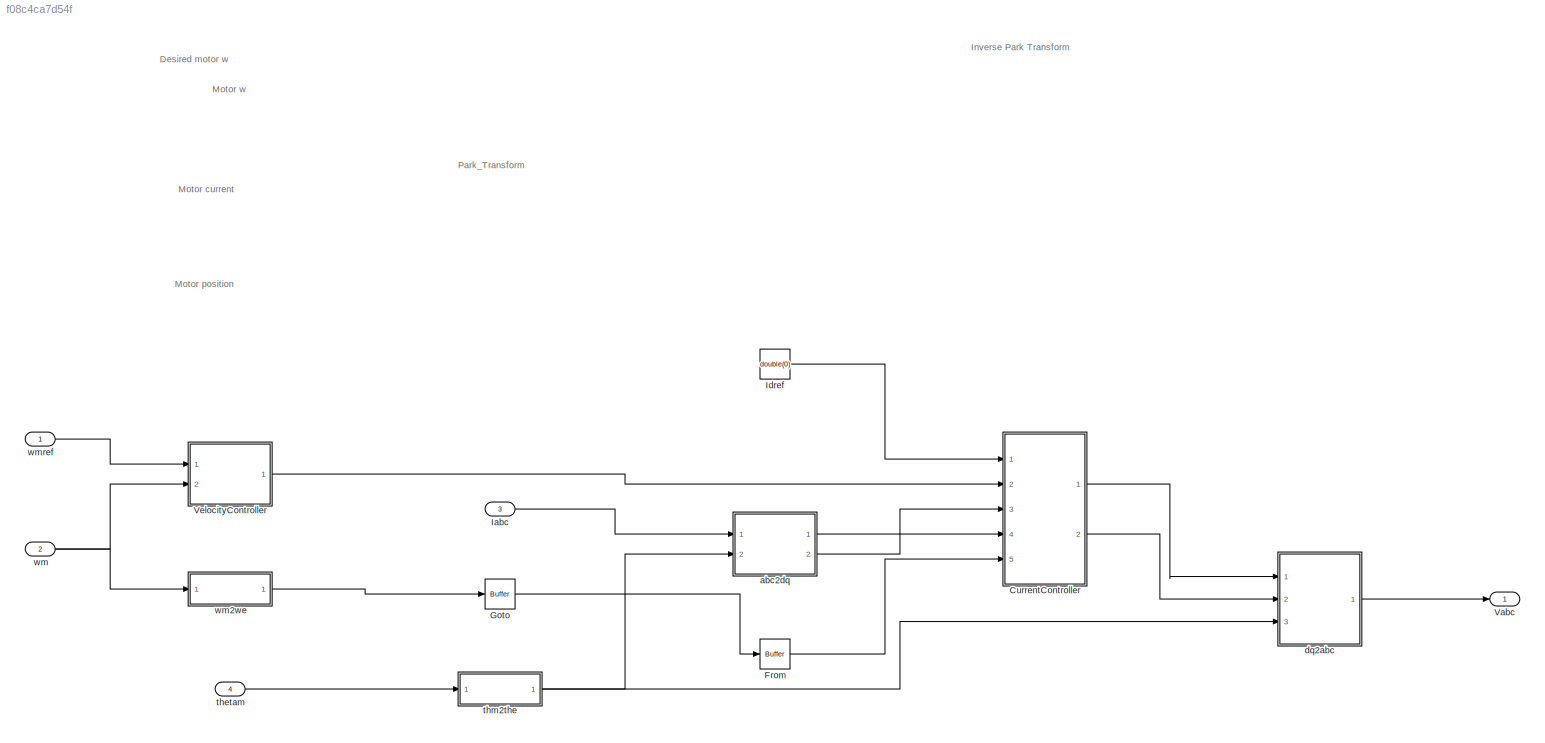
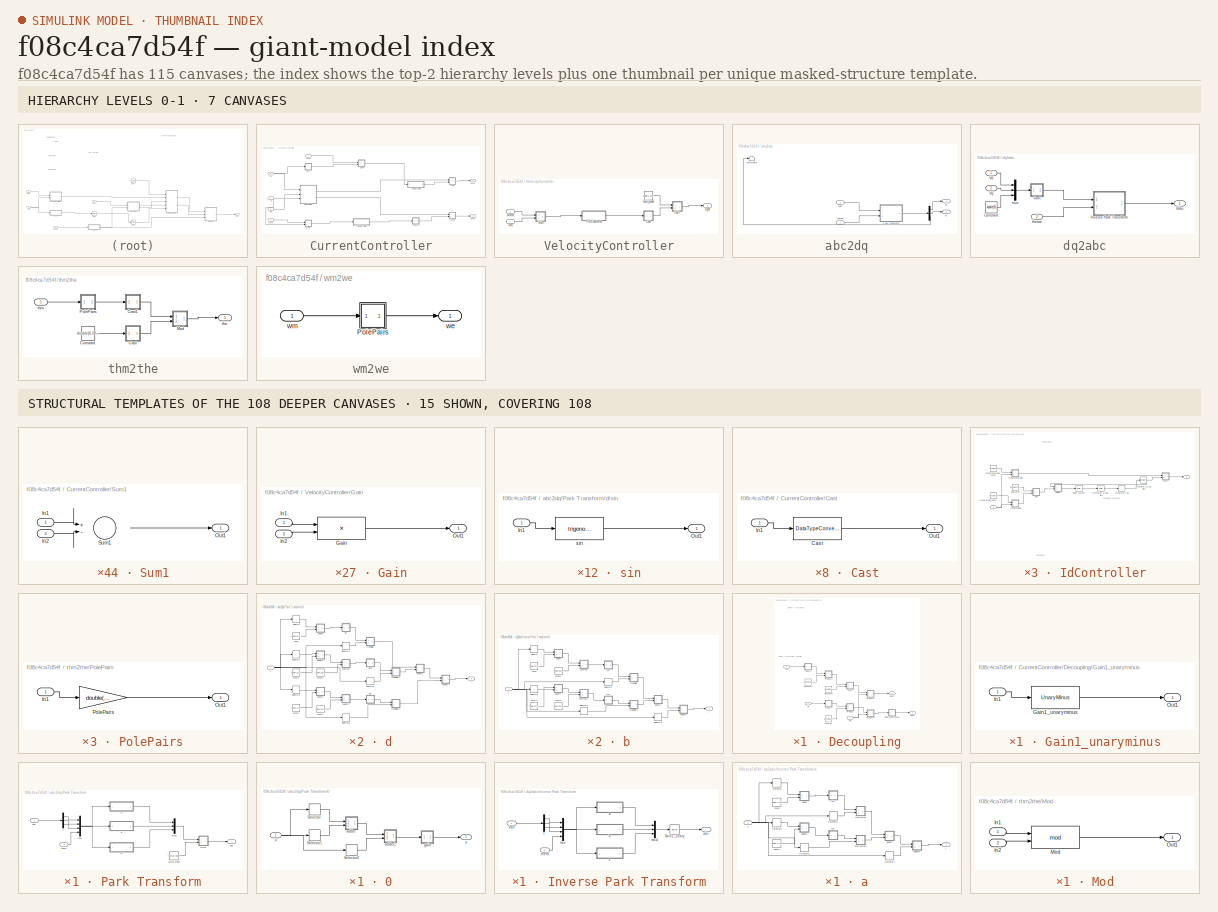
[diagram: thumbnail index - top-2 hierarchy levels (7 canvases) + 15 structural-template representatives of the remaining 108 canvases]
MODEL slx_f08c4ca7d54f
KIND model
CONFIG AbsTol = auto
CONFIG EnableMultiTasking = off
CONFIG FixedStep = auto
CONFIG MaxStep = auto
CONFIG MinStep = auto
CONFIG RelTol = 1e-3
CONFIG SampleTimeConstraint = Unconstrained
CONFIG Solver = VariableStepAuto
CONFIG SolverName = VariableStepAuto
CONFIG StartTime = 0.0
CONFIG StopTime = 10.0
BLOCK [SubSystem] CurrentController
  Ports = [5, 2]
  RequestExecContextInheritance = off
BLOCK [SubSystem] CurrentController/Cast
  Ports = [1, 1]
  RequestExecContextInheritance = off
BLOCK [DataTypeConversion] CurrentController/Cast/Cast
  OutDataTypeStr = double
  RndMeth = Nearest
  SampleTime = 10000
  SaturateOnIntegerOverflow = off
BLOCK [Inport] CurrentController/Cast/In1
BLOCK [Outport] CurrentController/Cast/Out1
BLOCK [SubSystem] CurrentController/Cast2
  Ports = [1, 1]
  RequestExecContextInheritance = off
BLOCK [DataTypeConversion] CurrentController/Cast2/Cast2
  OutDataTypeStr = double
  RndMeth = Nearest
  SampleTime = 10000
  SaturateOnIntegerOverflow = off
BLOCK [Inport] CurrentController/Cast2/In1
BLOCK [Outport] CurrentController/Cast2/Out1
BLOCK [SubSystem] CurrentController/Decoupling
  Ports = [3, 2]
  RequestExecContextInheritance = off
BLOCK [SubSystem] CurrentController/Decoupling/Cast
  Ports = [1, 1]
  RequestExecContextInheritance = off
BLOCK [DataTypeConversion] CurrentController/Decoupling/Cast/Cast
  OutDataTypeStr = double
  RndMeth = Nearest
  SampleTime = 10000
  SaturateOnIntegerOverflow = off
BLOCK [Inport] CurrentController/Decoupling/Cast/In1
BLOCK [Outport] CurrentController/Decoupling/Cast/Out1
BLOCK [SubSystem] CurrentController/Decoupling/Cast2
  Ports = [1, 1]
  RequestExecContextInheritance = off
BLOCK [DataTypeConversion] CurrentController/Decoupling/Cast2/Cast2
  OutDataTypeStr = double
  RndMeth = Nearest
  SampleTime = 10000
  SaturateOnIntegerOverflow = off
BLOCK [Inport] CurrentController/Decoupling/Cast2/In1
BLOCK [Outport] CurrentController/Decoupling/Cast2/Out1
BLOCK [Constant] CurrentController/Decoupling/Constant
  OutDataTypeStr = double
  SampleTime = 10000
  Value = double(0.02)
BLOCK [Constant] CurrentController/Decoupling/Constant1
  OutDataTypeStr = double
  SampleTime = 10000
  Value = double(0.01)
BLOCK [Constant] CurrentController/Decoupling/Constant2
  OutDataTypeStr = double
  SampleTime = 10000
  Value = double(0.1)
BLOCK [SubSystem] CurrentController/Decoupling/Gain1_unaryminus
  Ports = [1, 1]
  RequestExecContextInheritance = off
BLOCK [UnaryMinus] CurrentController/Decoupling/Gain1_unaryminus/Gain1_unaryminus
  SampleTime = 10000
BLOCK [Inport] CurrentController/Decoupling/Gain1_unaryminus/In1
BLOCK [Outport] CurrentController/Decoupling/Gain1_unaryminus/Out1
BLOCK [Inport] CurrentController/Decoupling/Id
  OutDataTypeStr = single
  PortDimensions = 1
  SampleTime = 10000
BLOCK [Inport] CurrentController/Decoupling/Iq
  OutDataTypeStr = single
  Port = 2
  PortDimensions = 1
  SampleTime = 10000
BLOCK [SubSystem] CurrentController/Decoupling/Product
  Ports = [2, 1]
  RequestExecContextInheritance = off
BLOCK [Inport] CurrentController/Decoupling/Product/In1
BLOCK [Inport] CurrentController/Decoupling/Product/In2
  Port = 2
BLOCK [Outport] CurrentController/Decoupling/Product/Out1
BLOCK [Product] CurrentController/Decoupling/Product/Product
  Inputs = **
  OutDataTypeStr = double
  Ports = [2, 1]
  SampleTime = 10000
BLOCK [SubSystem] CurrentController/Decoupling/Product1
  Ports = [2, 1]
  RequestExecContextInheritance = off
BLOCK [Inport] CurrentController/Decoupling/Product1/In1
BLOCK [Inport] CurrentController/Decoupling/Product1/In2
  Port = 2
BLOCK [Outport] CurrentController/Decoupling/Product1/Out1
BLOCK [Product] CurrentController/Decoupling/Product1/Product1
  Inputs = **
  OutDataTypeStr = double
  Ports = [2, 1]
  SampleTime = 10000
BLOCK [SubSystem] CurrentController/Decoupling/Product2
  Ports = [2, 1]
  RequestExecContextInheritance = off
BLOCK [Inport] CurrentController/Decoupling/Product2/In1
BLOCK [Inport] CurrentController/Decoupling/Product2/In2
  Port = 2
BLOCK [Outport] CurrentController/Decoupling/Product2/Out1
BLOCK [Product] CurrentController/Decoupling/Product2/Product2
  Inputs = **
  OutDataTypeStr = double
  Ports = [2, 1]
  SampleTime = 10000
BLOCK [SubSystem] CurrentController/Decoupling/Product3
  Ports = [2, 1]
  RequestExecContextInheritance = off
BLOCK [Inport] CurrentController/Decoupling/Product3/In1
BLOCK [Inport] CurrentController/Decoupling/Product3/In2
  Port = 2
BLOCK [Outport] CurrentController/Decoupling/Product3/Out1
BLOCK [Product] CurrentController/Decoupling/Product3/Product3
  Inputs = **
  OutDataTypeStr = double
  Ports = [2, 1]
  SampleTime = 10000
BLOCK [SubSystem] CurrentController/Decoupling/Sum
  Ports = [2, 1]
  RequestExecContextInheritance = off
BLOCK [Inport] CurrentController/Decoupling/Sum/In1
BLOCK [Inport] CurrentController/Decoupling/Sum/In2
  Port = 2
BLOCK [Outport] CurrentController/Decoupling/Sum/Out1
BLOCK [Sum] CurrentController/Decoupling/Sum/Sum
  OutDataTypeStr = double
  Ports = [2, 1]
  SampleTime = 10000
BLOCK [Outport] CurrentController/Decoupling/VdFF
  VectorParamsAs1DForOutWhenUnconnected = off
BLOCK [Outport] CurrentController/Decoupling/VqFF
  Port = 2
  VectorParamsAs1DForOutWhenUnconnected = off
BLOCK [Inport] CurrentController/Decoupling/we
  OutDataTypeStr = double
  Port = 3
  PortDimensions = 1
  SampleTime = 10000
BLOCK [Inport] CurrentController/Id
  OutDataTypeStr = single
  Port = 3
  PortDimensions = 1
  SampleTime = 10000
BLOCK [SubSystem] CurrentController/IdController
  Ports = [1, 1]
  RequestExecContextInheritance = off
BLOCK [SubSystem] CurrentController/IdController/Integral Gain
  Ports = [2, 1]
  RequestExecContextInheritance = off
BLOCK [Inport] CurrentController/IdController/Integral Gain/In1
BLOCK [Inport] CurrentController/IdController/Integral Gain/In2
  Port = 2
BLOCK [Product] CurrentController/IdController/Integral Gain/Integral Gain
  Inputs = **
  OutDataTypeStr = double
  Ports = [2, 1]
  SampleTime = 10000
BLOCK [Outport] CurrentController/IdController/Integral Gain/Out1
BLOCK [Constant] CurrentController/IdController/Integral Gain_const
  OutDataTypeStr = double
  SampleTime = 10000
  Value = double(380)
BLOCK [Delay] CurrentController/IdController/Integrator_reg
  DelayLength = double(1)
  InitialCondition = 0
  InputPortMap = u0
  Ports = [1, 1]
  SampleTime = 10000
BLOCK [Reference] CurrentController/IdController/Integrator_u_add_wire  REF=hdlmdlgenlib/Buffer
  Ports = [1, 1]
  SourceBlock = hdlmdlgenlib/Buffer
  SourceProductBaseCode = SL
  SourceType = Buffer/Wire
BLOCK [Reference] CurrentController/IdController/Integrator_x_reg_wire  REF=hdlmdlgenlib/Buffer
  Ports = [1, 1]
  SourceBlock = hdlmdlgenlib/Buffer
  SourceProductBaseCode = SL
  SourceType = Buffer/Wire
BLOCK [SubSystem] CurrentController/IdController/Proportional Gain
  Ports = [2, 1]
  RequestExecContextInheritance = off
BLOCK [Inport] CurrentController/IdController/Proportional Gain/In1
BLOCK [Inport] CurrentController/IdController/Proportional Gain/In2
  Port = 2
BLOCK [Outport] CurrentController/IdController/Proportional Gain/Out1
BLOCK [Product] CurrentController/IdController/Proportional Gain/Proportional Gain
  Inputs = **
  OutDataTypeStr = double
  Ports = [2, 1]
  SampleTime = 10000
BLOCK [Constant] CurrentController/IdController/Proportional Gain_const
  OutDataTypeStr = double
  SampleTime = 10000
  Value = double(10)
BLOCK [SubSystem] CurrentController/IdController/Sum
  Ports = [2, 1]
  RequestExecContextInheritance = off
BLOCK [Inport] CurrentController/IdController/Sum/In1
BLOCK [Inport] CurrentController/IdController/Sum/In2
  Port = 2
BLOCK [Outport] CurrentController/IdController/Sum/Out1
BLOCK [Sum] CurrentController/IdController/Sum/Sum
  OutDataTypeStr = double
  Ports = [2, 1]
  SampleTime = 10000
BLOCK [SubSystem] CurrentController/IdController/adder
  Ports = [2, 1]
  RequestExecContextInheritance = off
BLOCK [Inport] CurrentController/IdController/adder/In1
BLOCK [Inport] CurrentController/IdController/adder/In2
  Port = 2
BLOCK [Outport] CurrentController/IdController/adder/Out1
BLOCK [Sum] CurrentController/IdController/adder/adder
  OutDataTypeStr = double
  Ports = [2, 1]
  SampleTime = 10000
BLOCK [Reference] CurrentController/IdController/adder_outbuff  REF=hdlmdlgenlib/Buffer
  Ports = [1, 1]
  SourceBlock = hdlmdlgenlib/Buffer
  SourceProductBaseCode = SL
  SourceType = Buffer/Wire
BLOCK [SubSystem] CurrentController/IdController/gain
  Ports = [2, 1]
  RequestExecContextInheritance = off
BLOCK [Inport] CurrentController/IdController/gain/In1
BLOCK [Inport] CurrentController/IdController/gain/In2
  Port = 2
BLOCK [Outport] CurrentController/IdController/gain/Out1
BLOCK [Product] CurrentController/IdController/gain/gain
  Inputs = **
  OutDataTypeStr = double
  Ports = [2, 1]
  SampleTime = 10000
BLOCK [Constant] CurrentController/IdController/gain_const
  OutDataTypeStr = double
  SampleTime = 10000
  Value = double(10000)
BLOCK [Inport] CurrentController/IdController/u
  OutDataTypeStr = double
  SampleTime = 10000
BLOCK [Outport] CurrentController/IdController/y
BLOCK [Inport] CurrentController/Idref
  OutDataTypeStr = double
  PortDimensions = 1
  SampleTime = 10000
BLOCK [Inport] CurrentController/Iq
  OutDataTypeStr = single
  Port = 4
  PortDimensions = 1
  SampleTime = 10000
BLOCK [SubSystem] CurrentController/IqController
  Ports = [1, 1]
  RequestExecContextInheritance = off
BLOCK [SubSystem] CurrentController/IqController/Integral Gain
  Ports = [2, 1]
  RequestExecContextInheritance = off
BLOCK [Inport] CurrentController/IqController/Integral Gain/In1
BLOCK [Inport] CurrentController/IqController/Integral Gain/In2
  Port = 2
BLOCK [Product] CurrentController/IqController/Integral Gain/Integral Gain
  Inputs = **
  OutDataTypeStr = single
  Ports = [2, 1]
  SampleTime = 10000
BLOCK [Outport] CurrentController/IqController/Integral Gain/Out1
BLOCK [Constant] CurrentController/IqController/Integral Gain_const
  OutDataTypeStr = single
  SampleTime = 10000
  Value = single(380)
BLOCK [Delay] CurrentController/IqController/Integrator_reg
  DelayLength = double(1)
  InitialCondition = 0
  InputPortMap = u0
  Ports = [1, 1]
  SampleTime = 10000
BLOCK [Reference] CurrentController/IqController/Integrator_u_add_wire  REF=hdlmdlgenlib/Buffer
  Ports = [1, 1]
  SourceBlock = hdlmdlgenlib/Buffer
  SourceProductBaseCode = SL
  SourceType = Buffer/Wire
BLOCK [Reference] CurrentController/IqController/Integrator_x_reg_wire  REF=hdlmdlgenlib/Buffer
  Ports = [1, 1]
  SourceBlock = hdlmdlgenlib/Buffer
  SourceProductBaseCode = SL
  SourceType = Buffer/Wire
BLOCK [SubSystem] CurrentController/IqController/Proportional Gain
  Ports = [2, 1]
  RequestExecContextInheritance = off
BLOCK [Inport] CurrentController/IqController/Proportional Gain/In1
BLOCK [Inport] CurrentController/IqController/Proportional Gain/In2
  Port = 2
BLOCK [Outport] CurrentController/IqController/Proportional Gain/Out1
BLOCK [Product] CurrentController/IqController/Proportional Gain/Proportional Gain
  Inputs = **
  OutDataTypeStr = single
  Ports = [2, 1]
  SampleTime = 10000
BLOCK [Constant] CurrentController/IqController/Proportional Gain_const
  OutDataTypeStr = single
  SampleTime = 10000
  Value = single(20)
BLOCK [SubSystem] CurrentController/IqController/Sum
  Ports = [2, 1]
  RequestExecContextInheritance = off
BLOCK [Inport] CurrentController/IqController/Sum/In1
BLOCK [Inport] CurrentController/IqController/Sum/In2
  Port = 2
BLOCK [Outport] CurrentController/IqController/Sum/Out1
BLOCK [Sum] CurrentController/IqController/Sum/Sum
  OutDataTypeStr = single
  Ports = [2, 1]
  SampleTime = 10000
BLOCK [SubSystem] CurrentController/IqController/adder
  Ports = [2, 1]
  RequestExecContextInheritance = off
BLOCK [Inport] CurrentController/IqController/adder/In1
BLOCK [Inport] CurrentController/IqController/adder/In2
  Port = 2
BLOCK [Outport] CurrentController/IqController/adder/Out1
BLOCK [Sum] CurrentController/IqController/adder/adder
  OutDataTypeStr = single
  Ports = [2, 1]
  SampleTime = 10000
BLOCK [Reference] CurrentController/IqController/adder_outbuff  REF=hdlmdlgenlib/Buffer
  Ports = [1, 1]
  SourceBlock = hdlmdlgenlib/Buffer
  SourceProductBaseCode = SL
  SourceType = Buffer/Wire
BLOCK [SubSystem] CurrentController/IqController/gain
  Ports = [2, 1]
  RequestExecContextInheritance = off
BLOCK [Inport] CurrentController/IqController/gain/In1
BLOCK [Inport] CurrentController/IqController/gain/In2
  Port = 2
BLOCK [Outport] CurrentController/IqController/gain/Out1
BLOCK [Product] CurrentController/IqController/gain/gain
  Inputs = **
  OutDataTypeStr = single
  Ports = [2, 1]
  SampleTime = 10000
BLOCK [Constant] CurrentController/IqController/gain_const
  OutDataTypeStr = single
  SampleTime = 10000
  Value = single(10000)
BLOCK [Inport] CurrentController/IqController/u
  OutDataTypeStr = single
  SampleTime = 10000
BLOCK [Outport] CurrentController/IqController/y
BLOCK [Inport] CurrentController/Iqref
  OutDataTypeStr = single
  Port = 2
  PortDimensions = 1
  SampleTime = 10000
BLOCK [SubSystem] CurrentController/Sum1
  Ports = [2, 1]
  RequestExecContextInheritance = off
BLOCK [Inport] CurrentController/Sum1/In1
BLOCK [Inport] CurrentController/Sum1/In2
  Port = 2
BLOCK [Outport] CurrentController/Sum1/Out1
BLOCK [Sum] CurrentController/Sum1/Sum1
  Inputs = +-
  OutDataTypeStr = single
  Ports = [2, 1]
  SampleTime = 10000
BLOCK [SubSystem] CurrentController/Sum2
  Ports = [2, 1]
  RequestExecContextInheritance = off
BLOCK [Inport] CurrentController/Sum2/In1
BLOCK [Inport] CurrentController/Sum2/In2
  Port = 2
BLOCK [Outport] CurrentController/Sum2/Out1
BLOCK [Sum] CurrentController/Sum2/Sum2
  OutDataTypeStr = double
  Ports = [2, 1]
  SampleTime = 10000
BLOCK [SubSystem] CurrentController/Sum3
  Ports = [2, 1]
  RequestExecContextInheritance = off
BLOCK [Inport] CurrentController/Sum3/In1
BLOCK [Inport] CurrentController/Sum3/In2
  Port = 2
BLOCK [Outport] CurrentController/Sum3/Out1
BLOCK [Sum] CurrentController/Sum3/Sum3
  OutDataTypeStr = double
  Ports = [2, 1]
  SampleTime = 10000
BLOCK [SubSystem] CurrentController/Sum4
  Ports = [2, 1]
  RequestExecContextInheritance = off
BLOCK [Inport] CurrentController/Sum4/In1
BLOCK [Inport] CurrentController/Sum4/In2
  Port = 2
BLOCK [Outport] CurrentController/Sum4/Out1
BLOCK [Sum] CurrentController/Sum4/Sum4
  Inputs = +-
  OutDataTypeStr = double
  Ports = [2, 1]
  SampleTime = 10000
BLOCK [Outport] CurrentController/Vdref
  VectorParamsAs1DForOutWhenUnconnected = off
BLOCK [Outport] CurrentController/Vqref
  Port = 2
  VectorParamsAs1DForOutWhenUnconnected = off
BLOCK [Inport] CurrentController/we
  OutDataTypeStr = double
  Port = 5
  PortDimensions = 1
  SampleTime = 10000
BLOCK [Reference] From  REF=hdlmdlgenlib/Buffer
  Ports = [1, 1]
  SourceBlock = hdlmdlgenlib/Buffer
  SourceProductBaseCode = SL
  SourceType = Buffer/Wire
BLOCK [Reference] Goto  REF=hdlmdlgenlib/Buffer
  Ports = [1, 1]
  SourceBlock = hdlmdlgenlib/Buffer
  SourceProductBaseCode = SL
  SourceType = Buffer/Wire
BLOCK [Inport] Iabc
  OutDataTypeStr = single
  Port = 3
  PortDimensions = [3]
  SampleTime = 10000
  Unit = A
BLOCK [Constant] Idref
  OutDataTypeStr = double
  SampleTime = 10000
  Value = double(0)
BLOCK [Outport] Vabc
  PortDimensions = 3
  Unit = V
  VarSizeSig = No
  VectorParamsAs1DForOutWhenUnconnected = off
BLOCK [SubSystem] VelocityController
  Ports = [2, 1]
  RequestExecContextInheritance = off
BLOCK [SubSystem] VelocityController/Cast
  Ports = [1, 1]
  RequestExecContextInheritance = off
BLOCK [DataTypeConversion] VelocityController/Cast/Cast
  OutDataTypeStr = single
  RndMeth = Nearest
  SampleTime = 10000
  SaturateOnIntegerOverflow = off
BLOCK [Inport] VelocityController/Cast/In1
BLOCK [Outport] VelocityController/Cast/Out1
BLOCK [SubSystem] VelocityController/Gain
  Ports = [2, 1]
  RequestExecContextInheritance = off
BLOCK [Product] VelocityController/Gain/Gain
  Inputs = **
  OutDataTypeStr = single
  Ports = [2, 1]
  SampleTime = 10000
BLOCK [Inport] VelocityController/Gain/In1
BLOCK [Inport] VelocityController/Gain/In2
  Port = 2
BLOCK [Outport] VelocityController/Gain/Out1
BLOCK [Constant] VelocityController/Gain_const
  OutDataTypeStr = single
  SampleTime = 10000
  Value = single(3.3333332538604736)
BLOCK [Outport] VelocityController/Iqref
  VectorParamsAs1DForOutWhenUnconnected = off
BLOCK [SubSystem] VelocityController/PIDController
  Ports = [1, 1]
  RequestExecContextInheritance = off
BLOCK [SubSystem] VelocityController/PIDController/Integral Gain
  Ports = [2, 1]
  RequestExecContextInheritance = off
BLOCK [Inport] VelocityController/PIDController/Integral Gain/In1
BLOCK [Inport] VelocityController/PIDController/Integral Gain/In2
  Port = 2
BLOCK [Product] VelocityController/PIDController/Integral Gain/Integral Gain
  Inputs = **
  OutDataTypeStr = double
  Ports = [2, 1]
  SampleTime = 10000
BLOCK [Outport] VelocityController/PIDController/Integral Gain/Out1
BLOCK [Constant] VelocityController/PIDController/Integral Gain_const
  OutDataTypeStr = double
  SampleTime = 10000
  Value = double(0.041)
BLOCK [Delay] VelocityController/PIDController/Integrator_reg
  DelayLength = double(1)
  InitialCondition = 0
  InputPortMap = u0
  Ports = [1, 1]
  SampleTime = 10000
BLOCK [Reference] VelocityController/PIDController/Integrator_u_add_wire  REF=hdlmdlgenlib/Buffer
  Ports = [1, 1]
  SourceBlock = hdlmdlgenlib/Buffer
  SourceProductBaseCode = SL
  SourceType = Buffer/Wire
BLOCK [Reference] VelocityController/PIDController/Integrator_x_reg_wire  REF=hdlmdlgenlib/Buffer
  Ports = [1, 1]
  SourceBlock = hdlmdlgenlib/Buffer
  SourceProductBaseCode = SL
  SourceType = Buffer/Wire
BLOCK [SubSystem] VelocityController/PIDController/Proportional Gain
  Ports = [2, 1]
  RequestExecContextInheritance = off
BLOCK [Inport] VelocityController/PIDController/Proportional Gain/In1
BLOCK [Inport] VelocityController/PIDController/Proportional Gain/In2
  Port = 2
BLOCK [Outport] VelocityController/PIDController/Proportional Gain/Out1
BLOCK [Product] VelocityController/PIDController/Proportional Gain/Proportional Gain
  Inputs = **
  OutDataTypeStr = double
  Ports = [2, 1]
  SampleTime = 10000
BLOCK [Constant] VelocityController/PIDController/Proportional Gain_const
  OutDataTypeStr = double
  SampleTime = 10000
  Value = double(0.0014)
BLOCK [SubSystem] VelocityController/PIDController/Sum
  Ports = [2, 1]
  RequestExecContextInheritance = off
BLOCK [Inport] VelocityController/PIDController/Sum/In1
BLOCK [Inport] VelocityController/PIDController/Sum/In2
  Port = 2
BLOCK [Outport] VelocityController/PIDController/Sum/Out1
BLOCK [Sum] VelocityController/PIDController/Sum/Sum
  OutDataTypeStr = double
  Ports = [2, 1]
  SampleTime = 10000
BLOCK [SubSystem] VelocityController/PIDController/adder
  Ports = [2, 1]
  RequestExecContextInheritance = off
BLOCK [Inport] VelocityController/PIDController/adder/In1
BLOCK [Inport] VelocityController/PIDController/adder/In2
  Port = 2
BLOCK [Outport] VelocityController/PIDController/adder/Out1
BLOCK [Sum] VelocityController/PIDController/adder/adder
  OutDataTypeStr = double
  Ports = [2, 1]
  SampleTime = 10000
BLOCK [Reference] VelocityController/PIDController/adder_outbuff  REF=hdlmdlgenlib/Buffer
  Ports = [1, 1]
  SourceBlock = hdlmdlgenlib/Buffer
  SourceProductBaseCode = SL
  SourceType = Buffer/Wire
BLOCK [SubSystem] VelocityController/PIDController/gain
  Ports = [2, 1]
  RequestExecContextInheritance = off
BLOCK [Inport] VelocityController/PIDController/gain/In1
BLOCK [Inport] VelocityController/PIDController/gain/In2
  Port = 2
BLOCK [Outport] VelocityController/PIDController/gain/Out1
BLOCK [Product] VelocityController/PIDController/gain/gain
  Inputs = **
  OutDataTypeStr = double
  Ports = [2, 1]
  SampleTime = 10000
BLOCK [Constant] VelocityController/PIDController/gain_const
  OutDataTypeStr = double
  SampleTime = 10000
  Value = double(10000)
BLOCK [Inport] VelocityController/PIDController/u
  OutDataTypeStr = double
  SampleTime = 10000
BLOCK [Outport] VelocityController/PIDController/y
BLOCK [SubSystem] VelocityController/Sum
  Ports = [2, 1]
  RequestExecContextInheritance = off
BLOCK [Inport] VelocityController/Sum/In1
BLOCK [Inport] VelocityController/Sum/In2
  Port = 2
BLOCK [Outport] VelocityController/Sum/Out1
BLOCK [Sum] VelocityController/Sum/Sum
  Inputs = +-
  OutDataTypeStr = double
  Ports = [2, 1]
  SampleTime = 10000
BLOCK [Inport] VelocityController/wm
  OutDataTypeStr = double
  Port = 2
  PortDimensions = 1
  SampleTime = 10000
BLOCK [Inport] VelocityController/wmref
  OutDataTypeStr = double
  PortDimensions = 1
  SampleTime = 10000
BLOCK [SubSystem] abc2dq
  Ports = [2, 2]
  RequestExecContextInheritance = off
BLOCK [Inport] abc2dq/Iabc
  OutDataTypeStr = single
  PortDimensions = [3]
  SampleTime = 10000
BLOCK [Outport] abc2dq/Id
  VectorParamsAs1DForOutWhenUnconnected = off
BLOCK [Outport] abc2dq/Iq
  Port = 2
  VectorParamsAs1DForOutWhenUnconnected = off
BLOCK [SubSystem] abc2dq/Park Transform
  Ports = [2, 1]
  RequestExecContextInheritance = off
BLOCK [SubSystem] abc2dq/Park Transform/0
  Ports = [1, 1]
  RequestExecContextInheritance = off
BLOCK [Selector] abc2dq/Park Transform/0/Selector
  IndexOptions = Index vector (dialog)
  Indices = double(1)
  OutputSizes = double(0)
  Ports = [1, 1]
  SampleTime = 10000
BLOCK [Selector] abc2dq/Park Transform/0/Selector1
  IndexOptions = Index vector (dialog)
  Indices = double(2)
  OutputSizes = double(0)
  Ports = [1, 1]
  SampleTime = 10000
BLOCK [Selector] abc2dq/Park Transform/0/Selector2
  IndexOptions = Index vector (dialog)
  Indices = double(3)
  OutputSizes = double(0)
  Ports = [1, 1]
  SampleTime = 10000
BLOCK [SubSystem] abc2dq/Park Transform/0/adder
  Ports = [2, 1]
  RequestExecContextInheritance = off
BLOCK [Inport] abc2dq/Park Transform/0/adder/In1
BLOCK [Inport] abc2dq/Park Transform/0/adder/In2
  Port = 2
BLOCK [Outport] abc2dq/Park Transform/0/adder/Out1
BLOCK [Sum] abc2dq/Park Transform/0/adder/adder
  OutDataTypeStr = single
  Ports = [2, 1]
  SampleTime = 10000
BLOCK [SubSystem] abc2dq/Park Transform/0/adder1
  Ports = [2, 1]
  RequestExecContextInheritance = off
BLOCK [Inport] abc2dq/Park Transform/0/adder1/In1
BLOCK [Inport] abc2dq/Park Transform/0/adder1/In2
  Port = 2
BLOCK [Outport] abc2dq/Park Transform/0/adder1/Out1
BLOCK [Sum] abc2dq/Park Transform/0/adder1/adder1
  OutDataTypeStr = single
  Ports = [2, 1]
  SampleTime = 10000
BLOCK [SubSystem] abc2dq/Park Transform/0/gain
  Ports = [1, 1]
  RequestExecContextInheritance = off
BLOCK [Inport] abc2dq/Park Transform/0/gain/In1
BLOCK [Outport] abc2dq/Park Transform/0/gain/Out1
BLOCK [Gain] abc2dq/Park Transform/0/gain/gain
  Gain = single(0.5)
BLOCK [Inport] abc2dq/Park Transform/0/u
  OutDataTypeStr = single
  PortDimensions = [4 1]
  SampleTime = 10000
BLOCK [Outport] abc2dq/Park Transform/0/y
  OutDataTypeStr = single
BLOCK [SubSystem] abc2dq/Park Transform/Gain1
  Ports = [2, 1]
  RequestExecContextInheritance = off
BLOCK [Product] abc2dq/Park Transform/Gain1/Gain1
  Inputs = **
  OutDataTypeStr = single
  Ports = [2, 1]
  SampleTime = 10000
BLOCK [Inport] abc2dq/Park Transform/Gain1/In1
BLOCK [Inport] abc2dq/Park Transform/Gain1/In2
  Port = 2
BLOCK [Outport] abc2dq/Park Transform/Gain1/Out1
BLOCK [Constant] abc2dq/Park Transform/Gain1_const
  OutDataTypeStr = single
  SampleTime = 10000
  Value = repmat(single(0.6666666865348816),3, 1)
BLOCK [Inport] abc2dq/Park Transform/abc
  OutDataTypeStr = single
  PortDimensions = [3]
  SampleTime = 10000
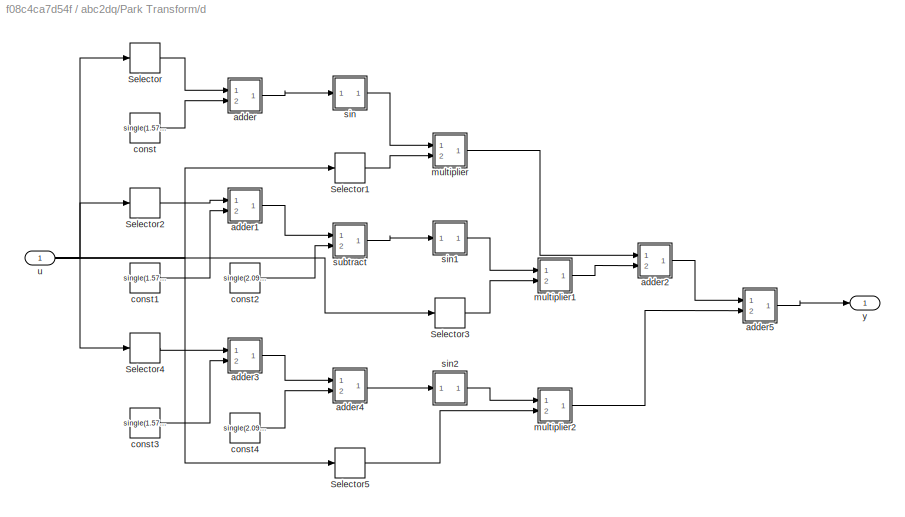
BLOCK [SubSystem] abc2dq/Park Transform/d
  Ports = [1, 1]
  RequestExecContextInheritance = off
BLOCK [Selector] abc2dq/Park Transform/d/Selector
  IndexOptions = Index vector (dialog)
  Indices = double(4)
  OutputSizes = double(0)
  Ports = [1, 1]
  SampleTime = 10000
BLOCK [Selector] abc2dq/Park Transform/d/Selector1
  IndexOptions = Index vector (dialog)
  Indices = double(1)
  OutputSizes = double(0)
  Ports = [1, 1]
  SampleTime = 10000
BLOCK [Selector] abc2dq/Park Transform/d/Selector2
  IndexOptions = Index vector (dialog)
  Indices = double(4)
  OutputSizes = double(0)
  Ports = [1, 1]
  SampleTime = 10000
BLOCK [Selector] abc2dq/Park Transform/d/Selector3
  IndexOptions = Index vector (dialog)
  Indices = double(2)
  OutputSizes = double(0)
  Ports = [1, 1]
  SampleTime = 10000
BLOCK [Selector] abc2dq/Park Transform/d/Selector4
  IndexOptions = Index vector (dialog)
  Indices = double(4)
  OutputSizes = double(0)
  Ports = [1, 1]
  SampleTime = 10000
BLOCK [Selector] abc2dq/Park Transform/d/Selector5
  IndexOptions = Index vector (dialog)
  Indices = double(3)
  OutputSizes = double(0)
  Ports = [1, 1]
  SampleTime = 10000
BLOCK [SubSystem] abc2dq/Park Transform/d/adder
  Ports = [2, 1]
  RequestExecContextInheritance = off
BLOCK [Inport] abc2dq/Park Transform/d/adder/In1
BLOCK [Inport] abc2dq/Park Transform/d/adder/In2
  Port = 2
BLOCK [Outport] abc2dq/Park Transform/d/adder/Out1
BLOCK [Sum] abc2dq/Park Transform/d/adder/adder
  OutDataTypeStr = single
  Ports = [2, 1]
  SampleTime = 10000
BLOCK [SubSystem] abc2dq/Park Transform/d/adder1
  Ports = [2, 1]
  RequestExecContextInheritance = off
BLOCK [Inport] abc2dq/Park Transform/d/adder1/In1
BLOCK [Inport] abc2dq/Park Transform/d/adder1/In2
  Port = 2
BLOCK [Outport] abc2dq/Park Transform/d/adder1/Out1
BLOCK [Sum] abc2dq/Park Transform/d/adder1/adder1
  OutDataTypeStr = single
  Ports = [2, 1]
  SampleTime = 10000
BLOCK [SubSystem] abc2dq/Park Transform/d/adder2
  Ports = [2, 1]
  RequestExecContextInheritance = off
BLOCK [Inport] abc2dq/Park Transform/d/adder2/In1
BLOCK [Inport] abc2dq/Park Transform/d/adder2/In2
  Port = 2
BLOCK [Outport] abc2dq/Park Transform/d/adder2/Out1
BLOCK [Sum] abc2dq/Park Transform/d/adder2/adder2
  OutDataTypeStr = single
  Ports = [2, 1]
  SampleTime = 10000
BLOCK [SubSystem] abc2dq/Park Transform/d/adder3
  Ports = [2, 1]
  RequestExecContextInheritance = off
BLOCK [Inport] abc2dq/Park Transform/d/adder3/In1
BLOCK [Inport] abc2dq/Park Transform/d/adder3/In2
  Port = 2
BLOCK [Outport] abc2dq/Park Transform/d/adder3/Out1
BLOCK [Sum] abc2dq/Park Transform/d/adder3/adder3
  OutDataTypeStr = single
  Ports = [2, 1]
  SampleTime = 10000
BLOCK [SubSystem] abc2dq/Park Transform/d/adder4
  Ports = [2, 1]
  RequestExecContextInheritance = off
BLOCK [Inport] abc2dq/Park Transform/d/adder4/In1
BLOCK [Inport] abc2dq/Park Transform/d/adder4/In2
  Port = 2
BLOCK [Outport] abc2dq/Park Transform/d/adder4/Out1
BLOCK [Sum] abc2dq/Park Transform/d/adder4/adder4
  OutDataTypeStr = single
  Ports = [2, 1]
  SampleTime = 10000
BLOCK [SubSystem] abc2dq/Park Transform/d/adder5
  Ports = [2, 1]
  RequestExecContextInheritance = off
BLOCK [Inport] abc2dq/Park Transform/d/adder5/In1
BLOCK [Inport] abc2dq/Park Transform/d/adder5/In2
  Port = 2
BLOCK [Outport] abc2dq/Park Transform/d/adder5/Out1
BLOCK [Sum] abc2dq/Park Transform/d/adder5/adder5
  OutDataTypeStr = single
  Ports = [2, 1]
  SampleTime = 10000
BLOCK [Constant] abc2dq/Park Transform/d/const
  OutDataTypeStr = single
  SampleTime = 10000
  Value = single(1.5707963705062866)
  VectorParams1D = off
BLOCK [Constant] abc2dq/Park Transform/d/const1
  OutDataTypeStr = single
  SampleTime = 10000
  Value = single(1.5707963705062866)
  VectorParams1D = off
BLOCK [Constant] abc2dq/Park Transform/d/const2
  OutDataTypeStr = single
  SampleTime = 10000
  Value = single(2.094395160675049)
  VectorParams1D = off
BLOCK [Constant] abc2dq/Park Transform/d/const3
  OutDataTypeStr = single
  SampleTime = 10000
  Value = single(1.5707963705062866)
  VectorParams1D = off
BLOCK [Constant] abc2dq/Park Transform/d/const4
  OutDataTypeStr = single
  SampleTime = 10000
  Value = single(2.094395160675049)
  VectorParams1D = off
BLOCK [SubSystem] abc2dq/Park Transform/d/multiplier
  Ports = [2, 1]
  RequestExecContextInheritance = off
BLOCK [Inport] abc2dq/Park Transform/d/multiplier/In1
BLOCK [Inport] abc2dq/Park Transform/d/multiplier/In2
  Port = 2
BLOCK [Outport] abc2dq/Park Transform/d/multiplier/Out1
BLOCK [Product] abc2dq/Park Transform/d/multiplier/multiplier
  Inputs = **
  OutDataTypeStr = single
  Ports = [2, 1]
  SampleTime = 10000
BLOCK [SubSystem] abc2dq/Park Transform/d/multiplier1
  Ports = [2, 1]
  RequestExecContextInheritance = off
BLOCK [Inport] abc2dq/Park Transform/d/multiplier1/In1
BLOCK [Inport] abc2dq/Park Transform/d/multiplier1/In2
  Port = 2
BLOCK [Outport] abc2dq/Park Transform/d/multiplier1/Out1
BLOCK [Product] abc2dq/Park Transform/d/multiplier1/multiplier1
  Inputs = **
  OutDataTypeStr = single
  Ports = [2, 1]
  SampleTime = 10000
BLOCK [SubSystem] abc2dq/Park Transform/d/multiplier2
  Ports = [2, 1]
  RequestExecContextInheritance = off
BLOCK [Inport] abc2dq/Park Transform/d/multiplier2/In1
BLOCK [Inport] abc2dq/Park Transform/d/multiplier2/In2
  Port = 2
BLOCK [Outport] abc2dq/Park Transform/d/multiplier2/Out1
BLOCK [Product] abc2dq/Park Transform/d/multiplier2/multiplier2
  Inputs = **
  OutDataTypeStr = single
  Ports = [2, 1]
  SampleTime = 10000
BLOCK [SubSystem] abc2dq/Park Transform/d/sin
  Ports = [1, 1]
  RequestExecContextInheritance = off
BLOCK [Inport] abc2dq/Park Transform/d/sin/In1
BLOCK [Outport] abc2dq/Park Transform/d/sin/Out1
BLOCK [Trigonometry] abc2dq/Park Transform/d/sin/sin
  Ports = [1, 1]
  SampleTime = 10000
BLOCK [SubSystem] abc2dq/Park Transform/d/sin1
  Ports = [1, 1]
  RequestExecContextInheritance = off
BLOCK [Inport] abc2dq/Park Transform/d/sin1/In1
BLOCK [Outport] abc2dq/Park Transform/d/sin1/Out1
BLOCK [Trigonometry] abc2dq/Park Transform/d/sin1/sin1
  Ports = [1, 1]
  SampleTime = 10000
BLOCK [SubSystem] abc2dq/Park Transform/d/sin2
  Ports = [1, 1]
  RequestExecContextInheritance = off
BLOCK [Inport] abc2dq/Park Transform/d/sin2/In1
BLOCK [Outport] abc2dq/Park Transform/d/sin2/Out1
BLOCK [Trigonometry] abc2dq/Park Transform/d/sin2/sin2
  Ports = [1, 1]
  SampleTime = 10000
BLOCK [SubSystem] abc2dq/Park Transform/d/subtract
  Ports = [2, 1]
  RequestExecContextInheritance = off
BLOCK [Inport] abc2dq/Park Transform/d/subtract/In1
BLOCK [Inport] abc2dq/Park Transform/d/subtract/In2
  Port = 2
BLOCK [Outport] abc2dq/Park Transform/d/subtract/Out1
BLOCK [Sum] abc2dq/Park Transform/d/subtract/subtract
  Inputs = +-
  OutDataTypeStr = single
  Ports = [2, 1]
  SampleTime = 10000
BLOCK [Inport] abc2dq/Park Transform/d/u
  OutDataTypeStr = single
  PortDimensions = [4 1]
  SampleTime = 10000
BLOCK [Outport] abc2dq/Park Transform/d/y
  OutDataTypeStr = single
BLOCK [Outport] abc2dq/Park Transform/dq0
BLOCK [Mux] abc2dq/Park Transform/mux
  DisplayOption = bar
  Ports = [4, 1]
BLOCK [Mux] abc2dq/Park Transform/mux1
  DisplayOption = bar
  Inputs = 3
  Ports = [3, 1]
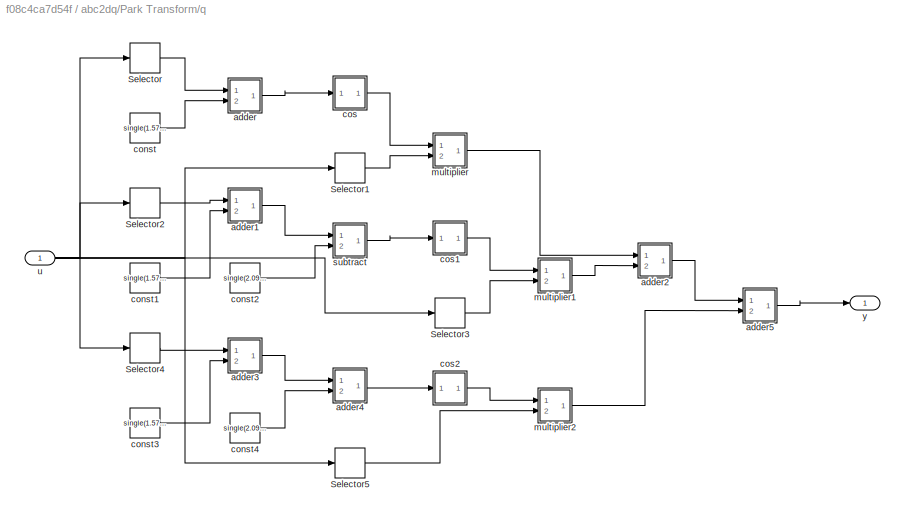
BLOCK [SubSystem] abc2dq/Park Transform/q
  Ports = [1, 1]
  RequestExecContextInheritance = off
BLOCK [Selector] abc2dq/Park Transform/q/Selector
  IndexOptions = Index vector (dialog)
  Indices = double(4)
  OutputSizes = double(0)
  Ports = [1, 1]
  SampleTime = 10000
BLOCK [Selector] abc2dq/Park Transform/q/Selector1
  IndexOptions = Index vector (dialog)
  Indices = double(1)
  OutputSizes = double(0)
  Ports = [1, 1]
  SampleTime = 10000
BLOCK [Selector] abc2dq/Park Transform/q/Selector2
  IndexOptions = Index vector (dialog)
  Indices = double(4)
  OutputSizes = double(0)
  Ports = [1, 1]
  SampleTime = 10000
BLOCK [Selector] abc2dq/Park Transform/q/Selector3
  IndexOptions = Index vector (dialog)
  Indices = double(2)
  OutputSizes = double(0)
  Ports = [1, 1]
  SampleTime = 10000
BLOCK [Selector] abc2dq/Park Transform/q/Selector4
  IndexOptions = Index vector (dialog)
  Indices = double(4)
  OutputSizes = double(0)
  Ports = [1, 1]
  SampleTime = 10000
BLOCK [Selector] abc2dq/Park Transform/q/Selector5
  IndexOptions = Index vector (dialog)
  Indices = double(3)
  OutputSizes = double(0)
  Ports = [1, 1]
  SampleTime = 10000
BLOCK [SubSystem] abc2dq/Park Transform/q/adder
  Ports = [2, 1]
  RequestExecContextInheritance = off
BLOCK [Inport] abc2dq/Park Transform/q/adder/In1
BLOCK [Inport] abc2dq/Park Transform/q/adder/In2
  Port = 2
BLOCK [Outport] abc2dq/Park Transform/q/adder/Out1
BLOCK [Sum] abc2dq/Park Transform/q/adder/adder
  OutDataTypeStr = single
  Ports = [2, 1]
  SampleTime = 10000
BLOCK [SubSystem] abc2dq/Park Transform/q/adder1
  Ports = [2, 1]
  RequestExecContextInheritance = off
BLOCK [Inport] abc2dq/Park Transform/q/adder1/In1
BLOCK [Inport] abc2dq/Park Transform/q/adder1/In2
  Port = 2
BLOCK [Outport] abc2dq/Park Transform/q/adder1/Out1
BLOCK [Sum] abc2dq/Park Transform/q/adder1/adder1
  OutDataTypeStr = single
  Ports = [2, 1]
  SampleTime = 10000
BLOCK [SubSystem] abc2dq/Park Transform/q/adder2
  Ports = [2, 1]
  RequestExecContextInheritance = off
BLOCK [Inport] abc2dq/Park Transform/q/adder2/In1
BLOCK [Inport] abc2dq/Park Transform/q/adder2/In2
  Port = 2
BLOCK [Outport] abc2dq/Park Transform/q/adder2/Out1
BLOCK [Sum] abc2dq/Park Transform/q/adder2/adder2
  OutDataTypeStr = single
  Ports = [2, 1]
  SampleTime = 10000
BLOCK [SubSystem] abc2dq/Park Transform/q/adder3
  Ports = [2, 1]
  RequestExecContextInheritance = off
BLOCK [Inport] abc2dq/Park Transform/q/adder3/In1
BLOCK [Inport] abc2dq/Park Transform/q/adder3/In2
  Port = 2
BLOCK [Outport] abc2dq/Park Transform/q/adder3/Out1
BLOCK [Sum] abc2dq/Park Transform/q/adder3/adder3
  OutDataTypeStr = single
  Ports = [2, 1]
  SampleTime = 10000
BLOCK [SubSystem] abc2dq/Park Transform/q/adder4
  Ports = [2, 1]
  RequestExecContextInheritance = off
BLOCK [Inport] abc2dq/Park Transform/q/adder4/In1
BLOCK [Inport] abc2dq/Park Transform/q/adder4/In2
  Port = 2
BLOCK [Outport] abc2dq/Park Transform/q/adder4/Out1
BLOCK [Sum] abc2dq/Park Transform/q/adder4/adder4
  OutDataTypeStr = single
  Ports = [2, 1]
  SampleTime = 10000
BLOCK [SubSystem] abc2dq/Park Transform/q/adder5
  Ports = [2, 1]
  RequestExecContextInheritance = off
BLOCK [Inport] abc2dq/Park Transform/q/adder5/In1
BLOCK [Inport] abc2dq/Park Transform/q/adder5/In2
  Port = 2
BLOCK [Outport] abc2dq/Park Transform/q/adder5/Out1
BLOCK [Sum] abc2dq/Park Transform/q/adder5/adder5
  OutDataTypeStr = single
  Ports = [2, 1]
  SampleTime = 10000
BLOCK [Constant] abc2dq/Park Transform/q/const
  OutDataTypeStr = single
  SampleTime = 10000
  Value = single(1.5707963705062866)
  VectorParams1D = off
BLOCK [Constant] abc2dq/Park Transform/q/const1
  OutDataTypeStr = single
  SampleTime = 10000
  Value = single(1.5707963705062866)
  VectorParams1D = off
BLOCK [Constant] abc2dq/Park Transform/q/const2
  OutDataTypeStr = single
  SampleTime = 10000
  Value = single(2.094395160675049)
  VectorParams1D = off
BLOCK [Constant] abc2dq/Park Transform/q/const3
  OutDataTypeStr = single
  SampleTime = 10000
  Value = single(1.5707963705062866)
  VectorParams1D = off
BLOCK [Constant] abc2dq/Park Transform/q/const4
  OutDataTypeStr = single
  SampleTime = 10000
  Value = single(2.094395160675049)
  VectorParams1D = off
BLOCK [SubSystem] abc2dq/Park Transform/q/cos
  Ports = [1, 1]
  RequestExecContextInheritance = off
BLOCK [Inport] abc2dq/Park Transform/q/cos/In1
BLOCK [Outport] abc2dq/Park Transform/q/cos/Out1
BLOCK [Trigonometry] abc2dq/Park Transform/q/cos/cos
  Operator = cos
  Ports = [1, 1]
  SampleTime = 10000
BLOCK [SubSystem] abc2dq/Park Transform/q/cos1
  Ports = [1, 1]
  RequestExecContextInheritance = off
BLOCK [Inport] abc2dq/Park Transform/q/cos1/In1
BLOCK [Outport] abc2dq/Park Transform/q/cos1/Out1
BLOCK [Trigonometry] abc2dq/Park Transform/q/cos1/cos1
  Operator = cos
  Ports = [1, 1]
  SampleTime = 10000
BLOCK [SubSystem] abc2dq/Park Transform/q/cos2
  Ports = [1, 1]
  RequestExecContextInheritance = off
BLOCK [Inport] abc2dq/Park Transform/q/cos2/In1
BLOCK [Outport] abc2dq/Park Transform/q/cos2/Out1
BLOCK [Trigonometry] abc2dq/Park Transform/q/cos2/cos2
  Operator = cos
  Ports = [1, 1]
  SampleTime = 10000
BLOCK [SubSystem] abc2dq/Park Transform/q/multiplier
  Ports = [2, 1]
  RequestExecContextInheritance = off
BLOCK [Inport] abc2dq/Park Transform/q/multiplier/In1
BLOCK [Inport] abc2dq/Park Transform/q/multiplier/In2
  Port = 2
BLOCK [Outport] abc2dq/Park Transform/q/multiplier/Out1
BLOCK [Product] abc2dq/Park Transform/q/multiplier/multiplier
  Inputs = **
  OutDataTypeStr = single
  Ports = [2, 1]
  SampleTime = 10000
BLOCK [SubSystem] abc2dq/Park Transform/q/multiplier1
  Ports = [2, 1]
  RequestExecContextInheritance = off
BLOCK [Inport] abc2dq/Park Transform/q/multiplier1/In1
BLOCK [Inport] abc2dq/Park Transform/q/multiplier1/In2
  Port = 2
BLOCK [Outport] abc2dq/Park Transform/q/multiplier1/Out1
BLOCK [Product] abc2dq/Park Transform/q/multiplier1/multiplier1
  Inputs = **
  OutDataTypeStr = single
  Ports = [2, 1]
  SampleTime = 10000
BLOCK [SubSystem] abc2dq/Park Transform/q/multiplier2
  Ports = [2, 1]
  RequestExecContextInheritance = off
BLOCK [Inport] abc2dq/Park Transform/q/multiplier2/In1
BLOCK [Inport] abc2dq/Park Transform/q/multiplier2/In2
  Port = 2
BLOCK [Outport] abc2dq/Park Transform/q/multiplier2/Out1
BLOCK [Product] abc2dq/Park Transform/q/multiplier2/multiplier2
  Inputs = **
  OutDataTypeStr = single
  Ports = [2, 1]
  SampleTime = 10000
BLOCK [SubSystem] abc2dq/Park Transform/q/subtract
  Ports = [2, 1]
  RequestExecContextInheritance = off
BLOCK [Inport] abc2dq/Park Transform/q/subtract/In1
BLOCK [Inport] abc2dq/Park Transform/q/subtract/In2
  Port = 2
BLOCK [Outport] abc2dq/Park Transform/q/subtract/Out1
BLOCK [Sum] abc2dq/Park Transform/q/subtract/subtract
  Inputs = +-
  OutDataTypeStr = single
  Ports = [2, 1]
  SampleTime = 10000
BLOCK [Inport] abc2dq/Park Transform/q/u
  OutDataTypeStr = single
  PortDimensions = [4 1]
  SampleTime = 10000
BLOCK [Outport] abc2dq/Park Transform/q/y
  OutDataTypeStr = single
BLOCK [Demux] abc2dq/Park Transform/t
  Outputs = 3
  Ports = [1, 3]
BLOCK [Inport] abc2dq/Park Transform/theta
  OutDataTypeStr = single
  Port = 2
  SampleTime = 10000
BLOCK [Terminator] abc2dq/Terminator
BLOCK [Demux] abc2dq/t
  Outputs = 3
  Ports = [1, 3]
BLOCK [Inport] abc2dq/thetae
  OutDataTypeStr = single
  Port = 2
  PortDimensions = 1
  SampleTime = 10000
BLOCK [SubSystem] dq2abc
  Ports = [3, 1]
  RequestExecContextInheritance = off
BLOCK [SubSystem] dq2abc/Cast
  Ports = [1, 1]
  RequestExecContextInheritance = off
BLOCK [DataTypeConversion] dq2abc/Cast/Cast
  OutDataTypeStr = single
  RndMeth = Nearest
  SampleTime = 10000
  SaturateOnIntegerOverflow = off
BLOCK [Inport] dq2abc/Cast/In1
BLOCK [Outport] dq2abc/Cast/Out1
BLOCK [Constant] dq2abc/Constant
  OutDataTypeStr = double
  SampleTime = 10000
  Value = double(0)
BLOCK [SubSystem] dq2abc/Inverse Park Transform
  Ports = [2, 1]
  RequestExecContextInheritance = off
BLOCK [Reference] dq2abc/Inverse Park Transform/Gain1_unary  REF=hdlmdlgenlib/Buffer
  Ports = [1, 1]
  SourceBlock = hdlmdlgenlib/Buffer
  SourceProductBaseCode = SL
  SourceType = Buffer/Wire
BLOCK [SubSystem] dq2abc/Inverse Park Transform/a
  Ports = [1, 1]
  RequestExecContextInheritance = off
BLOCK [Selector] dq2abc/Inverse Park Transform/a/Selector
  IndexOptions = Index vector (dialog)
  Indices = double(4)
  OutputSizes = double(0)
  Ports = [1, 1]
  SampleTime = 10000
BLOCK [Selector] dq2abc/Inverse Park Transform/a/Selector1
  IndexOptions = Index vector (dialog)
  Indices = double(1)
  OutputSizes = double(0)
  Ports = [1, 1]
  SampleTime = 10000
BLOCK [Selector] dq2abc/Inverse Park Transform/a/Selector2
  IndexOptions = Index vector (dialog)
  Indices = double(4)
  OutputSizes = double(0)
  Ports = [1, 1]
  SampleTime = 10000
BLOCK [Selector] dq2abc/Inverse Park Transform/a/Selector3
  IndexOptions = Index vector (dialog)
  Indices = double(2)
  OutputSizes = double(0)
  Ports = [1, 1]
  SampleTime = 10000
BLOCK [Selector] dq2abc/Inverse Park Transform/a/Selector4
  IndexOptions = Index vector (dialog)
  Indices = double(3)
  OutputSizes = double(0)
  Ports = [1, 1]
  SampleTime = 10000
BLOCK [SubSystem] dq2abc/Inverse Park Transform/a/adder
  Ports = [2, 1]
  RequestExecContextInheritance = off
BLOCK [Inport] dq2abc/Inverse Park Transform/a/adder/In1
BLOCK [Inport] dq2abc/Inverse Park Transform/a/adder/In2
  Port = 2
BLOCK [Outport] dq2abc/Inverse Park Transform/a/adder/Out1
BLOCK [Sum] dq2abc/Inverse Park Transform/a/adder/adder
  OutDataTypeStr = single
  Ports = [2, 1]
  SampleTime = 10000
BLOCK [SubSystem] dq2abc/Inverse Park Transform/a/adder1
  Ports = [2, 1]
  RequestExecContextInheritance = off
BLOCK [Inport] dq2abc/Inverse Park Transform/a/adder1/In1
BLOCK [Inport] dq2abc/Inverse Park Transform/a/adder1/In2
  Port = 2
BLOCK [Outport] dq2abc/Inverse Park Transform/a/adder1/Out1
BLOCK [Sum] dq2abc/Inverse Park Transform/a/adder1/adder1
  OutDataTypeStr = single
  Ports = [2, 1]
  SampleTime = 10000
BLOCK [SubSystem] dq2abc/Inverse Park Transform/a/adder2
  Ports = [2, 1]
  RequestExecContextInheritance = off
BLOCK [Inport] dq2abc/Inverse Park Transform/a/adder2/In1
BLOCK [Inport] dq2abc/Inverse Park Transform/a/adder2/In2
  Port = 2
BLOCK [Outport] dq2abc/Inverse Park Transform/a/adder2/Out1
BLOCK [Sum] dq2abc/Inverse Park Transform/a/adder2/adder2
  OutDataTypeStr = single
  Ports = [2, 1]
  SampleTime = 10000
BLOCK [SubSystem] dq2abc/Inverse Park Transform/a/adder3
  Ports = [2, 1]
  RequestExecContextInheritance = off
BLOCK [Inport] dq2abc/Inverse Park Transform/a/adder3/In1
BLOCK [Inport] dq2abc/Inverse Park Transform/a/adder3/In2
  Port = 2
BLOCK [Outport] dq2abc/Inverse Park Transform/a/adder3/Out1
BLOCK [Sum] dq2abc/Inverse Park Transform/a/adder3/adder3
  OutDataTypeStr = single
  Ports = [2, 1]
  SampleTime = 10000
BLOCK [Constant] dq2abc/Inverse Park Transform/a/const
  OutDataTypeStr = single
  SampleTime = 10000
  Value = single(1.5707963705062866)
  VectorParams1D = off
BLOCK [Constant] dq2abc/Inverse Park Transform/a/const1
  OutDataTypeStr = single
  SampleTime = 10000
  Value = single(1.5707963705062866)
  VectorParams1D = off
BLOCK [SubSystem] dq2abc/Inverse Park Transform/a/cos
  Ports = [1, 1]
  RequestExecContextInheritance = off
BLOCK [Inport] dq2abc/Inverse Park Transform/a/cos/In1
BLOCK [Outport] dq2abc/Inverse Park Transform/a/cos/Out1
BLOCK [Trigonometry] dq2abc/Inverse Park Transform/a/cos/cos
  Operator = cos
  Ports = [1, 1]
  SampleTime = 10000
BLOCK [SubSystem] dq2abc/Inverse Park Transform/a/multiplier
  Ports = [2, 1]
  RequestExecContextInheritance = off
BLOCK [Inport] dq2abc/Inverse Park Transform/a/multiplier/In1
BLOCK [Inport] dq2abc/Inverse Park Transform/a/multiplier/In2
  Port = 2
BLOCK [Outport] dq2abc/Inverse Park Transform/a/multiplier/Out1
BLOCK [Product] dq2abc/Inverse Park Transform/a/multiplier/multiplier
  Inputs = **
  OutDataTypeStr = single
  Ports = [2, 1]
  SampleTime = 10000
BLOCK [SubSystem] dq2abc/Inverse Park Transform/a/multiplier1
  Ports = [2, 1]
  RequestExecContextInheritance = off
BLOCK [Inport] dq2abc/Inverse Park Transform/a/multiplier1/In1
BLOCK [Inport] dq2abc/Inverse Park Transform/a/multiplier1/In2
  Port = 2
BLOCK [Outport] dq2abc/Inverse Park Transform/a/multiplier1/Out1
BLOCK [Product] dq2abc/Inverse Park Transform/a/multiplier1/multiplier1
  Inputs = **
  OutDataTypeStr = single
  Ports = [2, 1]
  SampleTime = 10000
BLOCK [SubSystem] dq2abc/Inverse Park Transform/a/sin
  Ports = [1, 1]
  RequestExecContextInheritance = off
BLOCK [Inport] dq2abc/Inverse Park Transform/a/sin/In1
BLOCK [Outport] dq2abc/Inverse Park Transform/a/sin/Out1
BLOCK [Trigonometry] dq2abc/Inverse Park Transform/a/sin/sin
  Ports = [1, 1]
  SampleTime = 10000
BLOCK [Inport] dq2abc/Inverse Park Transform/a/u
  OutDataTypeStr = single
  PortDimensions = [4 1]
  SampleTime = 10000
BLOCK [Outport] dq2abc/Inverse Park Transform/a/y
  OutDataTypeStr = single
BLOCK [Outport] dq2abc/Inverse Park Transform/abc
BLOCK [SubSystem] dq2abc/Inverse Park Transform/b
  Ports = [1, 1]
  RequestExecContextInheritance = off
BLOCK [Selector] dq2abc/Inverse Park Transform/b/Selector
  IndexOptions = Index vector (dialog)
  Indices = double(4)
  OutputSizes = double(0)
  Ports = [1, 1]
  SampleTime = 10000
BLOCK [Selector] dq2abc/Inverse Park Transform/b/Selector1
  IndexOptions = Index vector (dialog)
  Indices = double(1)
  OutputSizes = double(0)
  Ports = [1, 1]
  SampleTime = 10000
BLOCK [Selector] dq2abc/Inverse Park Transform/b/Selector2
  IndexOptions = Index vector (dialog)
  Indices = double(4)
  OutputSizes = double(0)
  Ports = [1, 1]
  SampleTime = 10000
BLOCK [Selector] dq2abc/Inverse Park Transform/b/Selector3
  IndexOptions = Index vector (dialog)
  Indices = double(2)
  OutputSizes = double(0)
  Ports = [1, 1]
  SampleTime = 10000
BLOCK [Selector] dq2abc/Inverse Park Transform/b/Selector4
  IndexOptions = Index vector (dialog)
  Indices = double(3)
  OutputSizes = double(0)
  Ports = [1, 1]
  SampleTime = 10000
BLOCK [SubSystem] dq2abc/Inverse Park Transform/b/adder
  Ports = [2, 1]
  RequestExecContextInheritance = off
BLOCK [Inport] dq2abc/Inverse Park Transform/b/adder/In1
BLOCK [Inport] dq2abc/Inverse Park Transform/b/adder/In2
  Port = 2
BLOCK [Outport] dq2abc/Inverse Park Transform/b/adder/Out1
BLOCK [Sum] dq2abc/Inverse Park Transform/b/adder/adder
  OutDataTypeStr = single
  Ports = [2, 1]
  SampleTime = 10000
BLOCK [SubSystem] dq2abc/Inverse Park Transform/b/adder1
  Ports = [2, 1]
  RequestExecContextInheritance = off
BLOCK [Inport] dq2abc/Inverse Park Transform/b/adder1/In1
BLOCK [Inport] dq2abc/Inverse Park Transform/b/adder1/In2
  Port = 2
BLOCK [Outport] dq2abc/Inverse Park Transform/b/adder1/Out1
BLOCK [Sum] dq2abc/Inverse Park Transform/b/adder1/adder1
  OutDataTypeStr = single
  Ports = [2, 1]
  SampleTime = 10000
BLOCK [SubSystem] dq2abc/Inverse Park Transform/b/adder2
  Ports = [2, 1]
  RequestExecContextInheritance = off
BLOCK [Inport] dq2abc/Inverse Park Transform/b/adder2/In1
BLOCK [Inport] dq2abc/Inverse Park Transform/b/adder2/In2
  Port = 2
BLOCK [Outport] dq2abc/Inverse Park Transform/b/adder2/Out1
BLOCK [Sum] dq2abc/Inverse Park Transform/b/adder2/adder2
  OutDataTypeStr = single
  Ports = [2, 1]
  SampleTime = 10000
BLOCK [SubSystem] dq2abc/Inverse Park Transform/b/adder3
  Ports = [2, 1]
  RequestExecContextInheritance = off
BLOCK [Inport] dq2abc/Inverse Park Transform/b/adder3/In1
BLOCK [Inport] dq2abc/Inverse Park Transform/b/adder3/In2
  Port = 2
BLOCK [Outport] dq2abc/Inverse Park Transform/b/adder3/Out1
BLOCK [Sum] dq2abc/Inverse Park Transform/b/adder3/adder3
  OutDataTypeStr = single
  Ports = [2, 1]
  SampleTime = 10000
BLOCK [Constant] dq2abc/Inverse Park Transform/b/const
  OutDataTypeStr = single
  SampleTime = 10000
  Value = single(1.5707963705062866)
  VectorParams1D = off
BLOCK [Constant] dq2abc/Inverse Park Transform/b/const1
  OutDataTypeStr = single
  SampleTime = 10000
  Value = single(2.094395160675049)
  VectorParams1D = off
BLOCK [Constant] dq2abc/Inverse Park Transform/b/const2
  OutDataTypeStr = single
  SampleTime = 10000
  Value = single(1.5707963705062866)
  VectorParams1D = off
BLOCK [Constant] dq2abc/Inverse Park Transform/b/const3
  OutDataTypeStr = single
  SampleTime = 10000
  Value = single(2.094395160675049)
  VectorParams1D = off
BLOCK [SubSystem] dq2abc/Inverse Park Transform/b/cos
  Ports = [1, 1]
  RequestExecContextInheritance = off
BLOCK [Inport] dq2abc/Inverse Park Transform/b/cos/In1
BLOCK [Outport] dq2abc/Inverse Park Transform/b/cos/Out1
BLOCK [Trigonometry] dq2abc/Inverse Park Transform/b/cos/cos
  Operator = cos
  Ports = [1, 1]
  SampleTime = 10000
BLOCK [SubSystem] dq2abc/Inverse Park Transform/b/multiplier
  Ports = [2, 1]
  RequestExecContextInheritance = off
BLOCK [Inport] dq2abc/Inverse Park Transform/b/multiplier/In1
BLOCK [Inport] dq2abc/Inverse Park Transform/b/multiplier/In2
  Port = 2
BLOCK [Outport] dq2abc/Inverse Park Transform/b/multiplier/Out1
BLOCK [Product] dq2abc/Inverse Park Transform/b/multiplier/multiplier
  Inputs = **
  OutDataTypeStr = single
  Ports = [2, 1]
  SampleTime = 10000
BLOCK [SubSystem] dq2abc/Inverse Park Transform/b/multiplier1
  Ports = [2, 1]
  RequestExecContextInheritance = off
BLOCK [Inport] dq2abc/Inverse Park Transform/b/multiplier1/In1
BLOCK [Inport] dq2abc/Inverse Park Transform/b/multiplier1/In2
  Port = 2
BLOCK [Outport] dq2abc/Inverse Park Transform/b/multiplier1/Out1
BLOCK [Product] dq2abc/Inverse Park Transform/b/multiplier1/multiplier1
  Inputs = **
  OutDataTypeStr = single
  Ports = [2, 1]
  SampleTime = 10000
BLOCK [SubSystem] dq2abc/Inverse Park Transform/b/sin
  Ports = [1, 1]
  RequestExecContextInheritance = off
BLOCK [Inport] dq2abc/Inverse Park Transform/b/sin/In1
BLOCK [Outport] dq2abc/Inverse Park Transform/b/sin/Out1
BLOCK [Trigonometry] dq2abc/Inverse Park Transform/b/sin/sin
  Ports = [1, 1]
  SampleTime = 10000
BLOCK [SubSystem] dq2abc/Inverse Park Transform/b/subtract
  Ports = [2, 1]
  RequestExecContextInheritance = off
BLOCK [Inport] dq2abc/Inverse Park Transform/b/subtract/In1
BLOCK [Inport] dq2abc/Inverse Park Transform/b/subtract/In2
  Port = 2
BLOCK [Outport] dq2abc/Inverse Park Transform/b/subtract/Out1
BLOCK [Sum] dq2abc/Inverse Park Transform/b/subtract/subtract
  Inputs = +-
  OutDataTypeStr = single
  Ports = [2, 1]
  SampleTime = 10000
BLOCK [SubSystem] dq2abc/Inverse Park Transform/b/subtract1
  Ports = [2, 1]
  RequestExecContextInheritance = off
BLOCK [Inport] dq2abc/Inverse Park Transform/b/subtract1/In1
BLOCK [Inport] dq2abc/Inverse Park Transform/b/subtract1/In2
  Port = 2
BLOCK [Outport] dq2abc/Inverse Park Transform/b/subtract1/Out1
BLOCK [Sum] dq2abc/Inverse Park Transform/b/subtract1/subtract1
  Inputs = +-
  OutDataTypeStr = single
  Ports = [2, 1]
  SampleTime = 10000
BLOCK [Inport] dq2abc/Inverse Park Transform/b/u
  OutDataTypeStr = single
  PortDimensions = [4 1]
  SampleTime = 10000
BLOCK [Outport] dq2abc/Inverse Park Transform/b/y
  OutDataTypeStr = single
BLOCK [SubSystem] dq2abc/Inverse Park Transform/c
  Ports = [1, 1]
  RequestExecContextInheritance = off
BLOCK [Selector] dq2abc/Inverse Park Transform/c/Selector
  IndexOptions = Index vector (dialog)
  Indices = double(4)
  OutputSizes = double(0)
  Ports = [1, 1]
  SampleTime = 10000
BLOCK [Selector] dq2abc/Inverse Park Transform/c/Selector1
  IndexOptions = Index vector (dialog)
  Indices = double(1)
  OutputSizes = double(0)
  Ports = [1, 1]
  SampleTime = 10000
BLOCK [Selector] dq2abc/Inverse Park Transform/c/Selector2
  IndexOptions = Index vector (dialog)
  Indices = double(4)
  OutputSizes = double(0)
  Ports = [1, 1]
  SampleTime = 10000
BLOCK [Selector] dq2abc/Inverse Park Transform/c/Selector3
  IndexOptions = Index vector (dialog)
  Indices = double(2)
  OutputSizes = double(0)
  Ports = [1, 1]
  SampleTime = 10000
BLOCK [Selector] dq2abc/Inverse Park Transform/c/Selector4
  IndexOptions = Index vector (dialog)
  Indices = double(3)
  OutputSizes = double(0)
  Ports = [1, 1]
  SampleTime = 10000
BLOCK [SubSystem] dq2abc/Inverse Park Transform/c/adder
  Ports = [2, 1]
  RequestExecContextInheritance = off
BLOCK [Inport] dq2abc/Inverse Park Transform/c/adder/In1
BLOCK [Inport] dq2abc/Inverse Park Transform/c/adder/In2
  Port = 2
BLOCK [Outport] dq2abc/Inverse Park Transform/c/adder/Out1
BLOCK [Sum] dq2abc/Inverse Park Transform/c/adder/adder
  OutDataTypeStr = single
  Ports = [2, 1]
  SampleTime = 10000
BLOCK [SubSystem] dq2abc/Inverse Park Transform/c/adder1
  Ports = [2, 1]
  RequestExecContextInheritance = off
BLOCK [Inport] dq2abc/Inverse Park Transform/c/adder1/In1
BLOCK [Inport] dq2abc/Inverse Park Transform/c/adder1/In2
  Port = 2
BLOCK [Outport] dq2abc/Inverse Park Transform/c/adder1/Out1
BLOCK [Sum] dq2abc/Inverse Park Transform/c/adder1/adder1
  OutDataTypeStr = single
  Ports = [2, 1]
  SampleTime = 10000
BLOCK [SubSystem] dq2abc/Inverse Park Transform/c/adder2
  Ports = [2, 1]
  RequestExecContextInheritance = off
BLOCK [Inport] dq2abc/Inverse Park Transform/c/adder2/In1
BLOCK [Inport] dq2abc/Inverse Park Transform/c/adder2/In2
  Port = 2
BLOCK [Outport] dq2abc/Inverse Park Transform/c/adder2/Out1
BLOCK [Sum] dq2abc/Inverse Park Transform/c/adder2/adder2
  OutDataTypeStr = single
  Ports = [2, 1]
  SampleTime = 10000
BLOCK [SubSystem] dq2abc/Inverse Park Transform/c/adder3
  Ports = [2, 1]
  RequestExecContextInheritance = off
BLOCK [Inport] dq2abc/Inverse Park Transform/c/adder3/In1
BLOCK [Inport] dq2abc/Inverse Park Transform/c/adder3/In2
  Port = 2
BLOCK [Outport] dq2abc/Inverse Park Transform/c/adder3/Out1
BLOCK [Sum] dq2abc/Inverse Park Transform/c/adder3/adder3
  OutDataTypeStr = single
  Ports = [2, 1]
  SampleTime = 10000
BLOCK [SubSystem] dq2abc/Inverse Park Transform/c/adder4
  Ports = [2, 1]
  RequestExecContextInheritance = off
BLOCK [Inport] dq2abc/Inverse Park Transform/c/adder4/In1
BLOCK [Inport] dq2abc/Inverse Park Transform/c/adder4/In2
  Port = 2
BLOCK [Outport] dq2abc/Inverse Park Transform/c/adder4/Out1
BLOCK [Sum] dq2abc/Inverse Park Transform/c/adder4/adder4
  OutDataTypeStr = single
  Ports = [2, 1]
  SampleTime = 10000
BLOCK [SubSystem] dq2abc/Inverse Park Transform/c/adder5
  Ports = [2, 1]
  RequestExecContextInheritance = off
BLOCK [Inport] dq2abc/Inverse Park Transform/c/adder5/In1
BLOCK [Inport] dq2abc/Inverse Park Transform/c/adder5/In2
  Port = 2
BLOCK [Outport] dq2abc/Inverse Park Transform/c/adder5/Out1
BLOCK [Sum] dq2abc/Inverse Park Transform/c/adder5/adder5
  OutDataTypeStr = single
  Ports = [2, 1]
  SampleTime = 10000
BLOCK [Constant] dq2abc/Inverse Park Transform/c/const
  OutDataTypeStr = single
  SampleTime = 10000
  Value = single(1.5707963705062866)
  VectorParams1D = off
BLOCK [Constant] dq2abc/Inverse Park Transform/c/const1
  OutDataTypeStr = single
  SampleTime = 10000
  Value = single(2.094395160675049)
  VectorParams1D = off
BLOCK [Constant] dq2abc/Inverse Park Transform/c/const2
  OutDataTypeStr = single
  SampleTime = 10000
  Value = single(1.5707963705062866)
  VectorParams1D = off
BLOCK [Constant] dq2abc/Inverse Park Transform/c/const3
  OutDataTypeStr = single
  SampleTime = 10000
  Value = single(2.094395160675049)
  VectorParams1D = off
BLOCK [SubSystem] dq2abc/Inverse Park Transform/c/cos
  Ports = [1, 1]
  RequestExecContextInheritance = off
BLOCK [Inport] dq2abc/Inverse Park Transform/c/cos/In1
BLOCK [Outport] dq2abc/Inverse Park Transform/c/cos/Out1
BLOCK [Trigonometry] dq2abc/Inverse Park Transform/c/cos/cos
  Operator = cos
  Ports = [1, 1]
  SampleTime = 10000
BLOCK [SubSystem] dq2abc/Inverse Park Transform/c/multiplier
  Ports = [2, 1]
  RequestExecContextInheritance = off
BLOCK [Inport] dq2abc/Inverse Park Transform/c/multiplier/In1
BLOCK [Inport] dq2abc/Inverse Park Transform/c/multiplier/In2
  Port = 2
BLOCK [Outport] dq2abc/Inverse Park Transform/c/multiplier/Out1
BLOCK [Product] dq2abc/Inverse Park Transform/c/multiplier/multiplier
  Inputs = **
  OutDataTypeStr = single
  Ports = [2, 1]
  SampleTime = 10000
BLOCK [SubSystem] dq2abc/Inverse Park Transform/c/multiplier1
  Ports = [2, 1]
  RequestExecContextInheritance = off
BLOCK [Inport] dq2abc/Inverse Park Transform/c/multiplier1/In1
BLOCK [Inport] dq2abc/Inverse Park Transform/c/multiplier1/In2
  Port = 2
BLOCK [Outport] dq2abc/Inverse Park Transform/c/multiplier1/Out1
BLOCK [Product] dq2abc/Inverse Park Transform/c/multiplier1/multiplier1
  Inputs = **
  OutDataTypeStr = single
  Ports = [2, 1]
  SampleTime = 10000
BLOCK [SubSystem] dq2abc/Inverse Park Transform/c/sin
  Ports = [1, 1]
  RequestExecContextInheritance = off
BLOCK [Inport] dq2abc/Inverse Park Transform/c/sin/In1
BLOCK [Outport] dq2abc/Inverse Park Transform/c/sin/Out1
BLOCK [Trigonometry] dq2abc/Inverse Park Transform/c/sin/sin
  Ports = [1, 1]
  SampleTime = 10000
BLOCK [Inport] dq2abc/Inverse Park Transform/c/u
  OutDataTypeStr = single
  PortDimensions = [4 1]
  SampleTime = 10000
BLOCK [Outport] dq2abc/Inverse Park Transform/c/y
  OutDataTypeStr = single
BLOCK [Inport] dq2abc/Inverse Park Transform/dq0
  OutDataTypeStr = single
  PortDimensions = [3]
  SampleTime = 10000
BLOCK [Mux] dq2abc/Inverse Park Transform/mux
  DisplayOption = bar
  Ports = [4, 1]
BLOCK [Mux] dq2abc/Inverse Park Transform/mux1
  DisplayOption = bar
  Inputs = 3
  Ports = [3, 1]
BLOCK [Demux] dq2abc/Inverse Park Transform/t
  Outputs = 3
  Ports = [1, 3]
BLOCK [Inport] dq2abc/Inverse Park Transform/theta
  OutDataTypeStr = single
  Port = 2
  SampleTime = 10000
BLOCK [Outport] dq2abc/Vabc
  PortDimensions = 3
  Unit = V
  VarSizeSig = No
  VectorParamsAs1DForOutWhenUnconnected = off
BLOCK [Inport] dq2abc/Vd
  OutDataTypeStr = double
  PortDimensions = 1
  SampleTime = 10000
BLOCK [Inport] dq2abc/Vq
  OutDataTypeStr = double
  Port = 2
  PortDimensions = 1
  SampleTime = 10000
BLOCK [Mux] dq2abc/mux
  DisplayOption = bar
  Inputs = 3
  Ports = [3, 1]
BLOCK [Inport] dq2abc/thetae
  OutDataTypeStr = single
  Port = 3
  PortDimensions = 1
  SampleTime = 10000
BLOCK [Inport] thetam
  OutDataTypeStr = double
  Port = 4
  PortDimensions = 1
  SampleTime = 10000
  Unit = rad
BLOCK [SubSystem] thm2the
  Ports = [1, 1]
  RequestExecContextInheritance = off
BLOCK [SubSystem] thm2the/Cast
  Ports = [1, 1]
  RequestExecContextInheritance = off
BLOCK [DataTypeConversion] thm2the/Cast/Cast
  OutDataTypeStr = single
  RndMeth = Nearest
  SampleTime = 10000
  SaturateOnIntegerOverflow = off
BLOCK [Inport] thm2the/Cast/In1
BLOCK [Outport] thm2the/Cast/Out1
BLOCK [SubSystem] thm2the/Cast1
  Ports = [1, 1]
  RequestExecContextInheritance = off
BLOCK [DataTypeConversion] thm2the/Cast1/Cast1
  OutDataTypeStr = single
  RndMeth = Nearest
  SampleTime = 10000
  SaturateOnIntegerOverflow = off
BLOCK [Inport] thm2the/Cast1/In1
BLOCK [Outport] thm2the/Cast1/Out1
BLOCK [Constant] thm2the/Constant
  OutDataTypeStr = double
  SampleTime = 10000
  Value = double(6.283185307179586)
BLOCK [SubSystem] thm2the/Mod
  Ports = [2, 1]
  RequestExecContextInheritance = off
BLOCK [Inport] thm2the/Mod/In1
BLOCK [Inport] thm2the/Mod/In2
  Port = 2
BLOCK [Math] thm2the/Mod/Mod
  Operator = mod
  Ports = [2, 1]
  SampleTime = 10000
BLOCK [Outport] thm2the/Mod/Out1
BLOCK [SubSystem] thm2the/PolePairs
  Ports = [1, 1]
  RequestExecContextInheritance = off
BLOCK [Inport] thm2the/PolePairs/In1
BLOCK [Outport] thm2the/PolePairs/Out1
BLOCK [Gain] thm2the/PolePairs/PolePairs
  Gain = double(2)
BLOCK [Outport] thm2the/the
  VectorParamsAs1DForOutWhenUnconnected = off
BLOCK [Inport] thm2the/thm
  OutDataTypeStr = double
  PortDimensions = 1
  SampleTime = 10000
BLOCK [Inport] wm
  OutDataTypeStr = double
  Port = 2
  PortDimensions = 1
  SampleTime = 10000
  Unit = rad/sec
BLOCK [SubSystem] wm2we
  Ports = [1, 1]
  RequestExecContextInheritance = off
BLOCK [SubSystem] wm2we/PolePairs
  Ports = [1, 1]
  RequestExecContextInheritance = off
BLOCK [Inport] wm2we/PolePairs/In1
BLOCK [Outport] wm2we/PolePairs/Out1
BLOCK [Gain] wm2we/PolePairs/PolePairs
  Gain = double(2)
BLOCK [Outport] wm2we/we
  VectorParamsAs1DForOutWhenUnconnected = off
BLOCK [Inport] wm2we/wm
  OutDataTypeStr = double
  PortDimensions = 1
  SampleTime = 10000
BLOCK [Inport] wmref
  OutDataTypeStr = double
  PortDimensions = 1
  SampleTime = 10000
  Unit = rad/sec
ANNOTATION (root): Desired motor w
ANNOTATION (root): Inverse Park Transform
ANNOTATION (root): Motor current
ANNOTATION (root): Motor position
ANNOTATION (root): Motor w
ANNOTATION (root): Park_Transform
ANNOTATION CurrentController/Decoupling: VdFF = -Lq*Iq*we
ANNOTATION CurrentController/Decoupling: VqFF = Ld*Id*we + Phi*we
ANNOTATION CurrentController/IdController: Derivative
ANNOTATION CurrentController/IdController: Feedback Features
ANNOTATION CurrentController/IdController: Integrator
ANNOTATION CurrentController/IqController: Derivative
ANNOTATION CurrentController/IqController: Feedback Features
ANNOTATION CurrentController/IqController: Integrator
ANNOTATION VelocityController/PIDController: Derivative
ANNOTATION VelocityController/PIDController: Feedback Features
ANNOTATION VelocityController/PIDController: Integrator
LINE CurrentController/Cast/Cast:1 -> CurrentController/Cast/Out1:1
LINE CurrentController/Cast/In1:1 -> CurrentController/Cast/Cast:1
LINE CurrentController/Cast2/Cast2:1 -> CurrentController/Cast2/Out1:1
LINE CurrentController/Cast2/In1:1 -> CurrentController/Cast2/Cast2:1
LINE CurrentController/Cast2:1 -> CurrentController/Sum3:2
LINE CurrentController/Cast:1 -> CurrentController/Sum4:2
LINE CurrentController/Decoupling/Cast/Cast:1 -> CurrentController/Decoupling/Cast/Out1:1
LINE CurrentController/Decoupling/Cast/In1:1 -> CurrentController/Decoupling/Cast/Cast:1
LINE CurrentController/Decoupling/Cast2/Cast2:1 -> CurrentController/Decoupling/Cast2/Out1:1
LINE CurrentController/Decoupling/Cast2/In1:1 -> CurrentController/Decoupling/Cast2/Cast2:1
LINE CurrentController/Decoupling/Cast2:1 -> CurrentController/Decoupling/Product1:1
LINE CurrentController/Decoupling/Cast:1 -> CurrentController/Decoupling/Product:1
LINE CurrentController/Decoupling/Constant1:1 -> CurrentController/Decoupling/Product1:2
LINE CurrentController/Decoupling/Constant2:1 -> CurrentController/Decoupling/Sum:2
LINE CurrentController/Decoupling/Constant:1 -> CurrentController/Decoupling/Product:2
LINE CurrentController/Decoupling/Gain1_unaryminus/Gain1_unaryminus:1 -> CurrentController/Decoupling/Gain1_unaryminus/Out1:1
LINE CurrentController/Decoupling/Gain1_unaryminus/In1:1 -> CurrentController/Decoupling/Gain1_unaryminus/Gain1_unaryminus:1
LINE CurrentController/Decoupling/Gain1_unaryminus:1 -> CurrentController/Decoupling/VdFF:1
LINE CurrentController/Decoupling/Id:1 -> CurrentController/Decoupling/Cast2:1
LINE CurrentController/Decoupling/Iq:1 -> CurrentController/Decoupling/Cast:1
LINE CurrentController/Decoupling/Product/In1:1 -> CurrentController/Decoupling/Product/Product:1
LINE CurrentController/Decoupling/Product/In2:1 -> CurrentController/Decoupling/Product/Product:2
LINE CurrentController/Decoupling/Product/Product:1 -> CurrentController/Decoupling/Product/Out1:1
LINE CurrentController/Decoupling/Product1/In1:1 -> CurrentController/Decoupling/Product1/Product1:1
LINE CurrentController/Decoupling/Product1/In2:1 -> CurrentController/Decoupling/Product1/Product1:2
LINE CurrentController/Decoupling/Product1/Product1:1 -> CurrentController/Decoupling/Product1/Out1:1
LINE CurrentController/Decoupling/Product1:1 -> CurrentController/Decoupling/Sum:1
LINE CurrentController/Decoupling/Product2/In1:1 -> CurrentController/Decoupling/Product2/Product2:1
LINE CurrentController/Decoupling/Product2/In2:1 -> CurrentController/Decoupling/Product2/Product2:2
LINE CurrentController/Decoupling/Product2/Product2:1 -> CurrentController/Decoupling/Product2/Out1:1
LINE CurrentController/Decoupling/Product2:1 -> CurrentController/Decoupling/VqFF:1
LINE CurrentController/Decoupling/Product3/In1:1 -> CurrentController/Decoupling/Product3/Product3:1
LINE CurrentController/Decoupling/Product3/In2:1 -> CurrentController/Decoupling/Product3/Product3:2
LINE CurrentController/Decoupling/Product3/Product3:1 -> CurrentController/Decoupling/Product3/Out1:1
LINE CurrentController/Decoupling/Product3:1 -> CurrentController/Decoupling/Gain1_unaryminus:1
LINE CurrentController/Decoupling/Product:1 -> CurrentController/Decoupling/Product3:1
LINE CurrentController/Decoupling/Sum/In1:1 -> CurrentController/Decoupling/Sum/Sum:1
LINE CurrentController/Decoupling/Sum/In2:1 -> CurrentController/Decoupling/Sum/Sum:2
LINE CurrentController/Decoupling/Sum/Sum:1 -> CurrentController/Decoupling/Sum/Out1:1
LINE CurrentController/Decoupling/Sum:1 -> CurrentController/Decoupling/Product2:1
NET CurrentController/Decoupling/we:1 -> CurrentController/Decoupling/Product2:2, CurrentController/Decoupling/Product3:2
LINE CurrentController/Decoupling:1 -> CurrentController/Sum2:1
LINE CurrentController/Decoupling:2 -> CurrentController/Sum3:1
NET CurrentController/Id:1 -> CurrentController/Cast:1, CurrentController/Decoupling:1
LINE CurrentController/IdController/Integral Gain/In1:1 -> CurrentController/IdController/Integral Gain/Integral Gain:1
LINE CurrentController/IdController/Integral Gain/In2:1 -> CurrentController/IdController/Integral Gain/Integral Gain:2
LINE CurrentController/IdController/Integral Gain/Integral Gain:1 -> CurrentController/IdController/Integral Gain/Out1:1
LINE CurrentController/IdController/Integral Gain:1 -> CurrentController/IdController/gain:2
LINE CurrentController/IdController/Integral Gain_const:1 -> CurrentController/IdController/Integral Gain:1
LINE CurrentController/IdController/Integrator_reg:1 -> CurrentController/IdController/Integrator_x_reg_wire:1
LINE CurrentController/IdController/Integrator_u_add_wire:1 -> CurrentController/IdController/Integrator_reg:1
NET CurrentController/IdController/Integrator_x_reg_wire:1 -> CurrentController/IdController/Sum:2, CurrentController/IdController/adder:1
LINE CurrentController/IdController/Proportional Gain/In1:1 -> CurrentController/IdController/Proportional Gain/Proportional Gain:1
LINE CurrentController/IdController/Proportional Gain/In2:1 -> CurrentController/IdController/Proportional Gain/Proportional Gain:2
LINE CurrentController/IdController/Proportional Gain/Proportional Gain:1 -> CurrentController/IdController/Proportional Gain/Out1:1
LINE CurrentController/IdController/Proportional Gain:1 -> CurrentController/IdController/Sum:1
LINE CurrentController/IdController/Proportional Gain_const:1 -> CurrentController/IdController/Proportional Gain:1
LINE CurrentController/IdController/Sum/In1:1 -> CurrentController/IdController/Sum/Sum:1
LINE CurrentController/IdController/Sum/In2:1 -> CurrentController/IdController/Sum/Sum:2
LINE CurrentController/IdController/Sum/Sum:1 -> CurrentController/IdController/Sum/Out1:1
LINE CurrentController/IdController/Sum:1 -> CurrentController/IdController/y:1
LINE CurrentController/IdController/adder/In1:1 -> CurrentController/IdController/adder/adder:1
LINE CurrentController/IdController/adder/In2:1 -> CurrentController/IdController/adder/adder:2
LINE CurrentController/IdController/adder/adder:1 -> CurrentController/IdController/adder/Out1:1
LINE CurrentController/IdController/adder:1 -> CurrentController/IdController/adder_outbuff:1
LINE CurrentController/IdController/adder_outbuff:1 -> CurrentController/IdController/Integrator_u_add_wire:1
LINE CurrentController/IdController/gain/In1:1 -> CurrentController/IdController/gain/gain:1
LINE CurrentController/IdController/gain/In2:1 -> CurrentController/IdController/gain/gain:2
LINE CurrentController/IdController/gain/gain:1 -> CurrentController/IdController/gain/Out1:1
LINE CurrentController/IdController/gain:1 -> CurrentController/IdController/adder:2
LINE CurrentController/IdController/gain_const:1 -> CurrentController/IdController/gain:1
NET CurrentController/IdController/u:1 -> CurrentController/IdController/Integral Gain:2, CurrentController/IdController/Proportional Gain:2
LINE CurrentController/IdController:1 -> CurrentController/Sum2:2
LINE CurrentController/Idref:1 -> CurrentController/Sum4:1
NET CurrentController/Iq:1 -> CurrentController/Decoupling:2, CurrentController/Sum1:2
LINE CurrentController/IqController/Integral Gain/In1:1 -> CurrentController/IqController/Integral Gain/Integral Gain:1
LINE CurrentController/IqController/Integral Gain/In2:1 -> CurrentController/IqController/Integral Gain/Integral Gain:2
LINE CurrentController/IqController/Integral Gain/Integral Gain:1 -> CurrentController/IqController/Integral Gain/Out1:1
LINE CurrentController/IqController/Integral Gain:1 -> CurrentController/IqController/gain:2
LINE CurrentController/IqController/Integral Gain_const:1 -> CurrentController/IqController/Integral Gain:1
LINE CurrentController/IqController/Integrator_reg:1 -> CurrentController/IqController/Integrator_x_reg_wire:1
LINE CurrentController/IqController/Integrator_u_add_wire:1 -> CurrentController/IqController/Integrator_reg:1
NET CurrentController/IqController/Integrator_x_reg_wire:1 -> CurrentController/IqController/Sum:2, CurrentController/IqController/adder:1
LINE CurrentController/IqController/Proportional Gain/In1:1 -> CurrentController/IqController/Proportional Gain/Proportional Gain:1
LINE CurrentController/IqController/Proportional Gain/In2:1 -> CurrentController/IqController/Proportional Gain/Proportional Gain:2
LINE CurrentController/IqController/Proportional Gain/Proportional Gain:1 -> CurrentController/IqController/Proportional Gain/Out1:1
LINE CurrentController/IqController/Proportional Gain:1 -> CurrentController/IqController/Sum:1
LINE CurrentController/IqController/Proportional Gain_const:1 -> CurrentController/IqController/Proportional Gain:1
LINE CurrentController/IqController/Sum/In1:1 -> CurrentController/IqController/Sum/Sum:1
LINE CurrentController/IqController/Sum/In2:1 -> CurrentController/IqController/Sum/Sum:2
LINE CurrentController/IqController/Sum/Sum:1 -> CurrentController/IqController/Sum/Out1:1
LINE CurrentController/IqController/Sum:1 -> CurrentController/IqController/y:1
LINE CurrentController/IqController/adder/In1:1 -> CurrentController/IqController/adder/adder:1
LINE CurrentController/IqController/adder/In2:1 -> CurrentController/IqController/adder/adder:2
LINE CurrentController/IqController/adder/adder:1 -> CurrentController/IqController/adder/Out1:1
LINE CurrentController/IqController/adder:1 -> CurrentController/IqController/adder_outbuff:1
LINE CurrentController/IqController/adder_outbuff:1 -> CurrentController/IqController/Integrator_u_add_wire:1
LINE CurrentController/IqController/gain/In1:1 -> CurrentController/IqController/gain/gain:1
LINE CurrentController/IqController/gain/In2:1 -> CurrentController/IqController/gain/gain:2
LINE CurrentController/IqController/gain/gain:1 -> CurrentController/IqController/gain/Out1:1
LINE CurrentController/IqController/gain:1 -> CurrentController/IqController/adder:2
LINE CurrentController/IqController/gain_const:1 -> CurrentController/IqController/gain:1
NET CurrentController/IqController/u:1 -> CurrentController/IqController/Integral Gain:2, CurrentController/IqController/Proportional Gain:2
LINE CurrentController/IqController:1 -> CurrentController/Cast2:1
LINE CurrentController/Iqref:1 -> CurrentController/Sum1:1
LINE CurrentController/Sum1/In1:1 -> CurrentController/Sum1/Sum1:1
LINE CurrentController/Sum1/In2:1 -> CurrentController/Sum1/Sum1:2
LINE CurrentController/Sum1/Sum1:1 -> CurrentController/Sum1/Out1:1
LINE CurrentController/Sum1:1 -> CurrentController/IqController:1
LINE CurrentController/Sum2/In1:1 -> CurrentController/Sum2/Sum2:1
LINE CurrentController/Sum2/In2:1 -> CurrentController/Sum2/Sum2:2
LINE CurrentController/Sum2/Sum2:1 -> CurrentController/Sum2/Out1:1
LINE CurrentController/Sum2:1 -> CurrentController/Vdref:1
LINE CurrentController/Sum3/In1:1 -> CurrentController/Sum3/Sum3:1
LINE CurrentController/Sum3/In2:1 -> CurrentController/Sum3/Sum3:2
LINE CurrentController/Sum3/Sum3:1 -> CurrentController/Sum3/Out1:1
LINE CurrentController/Sum3:1 -> CurrentController/Vqref:1
LINE CurrentController/Sum4/In1:1 -> CurrentController/Sum4/Sum4:1
LINE CurrentController/Sum4/In2:1 -> CurrentController/Sum4/Sum4:2
LINE CurrentController/Sum4/Sum4:1 -> CurrentController/Sum4/Out1:1
LINE CurrentController/Sum4:1 -> CurrentController/IdController:1
LINE CurrentController/we:1 -> CurrentController/Decoupling:3
LINE CurrentController:1 -> dq2abc:1
LINE CurrentController:2 -> dq2abc:2
LINE From:1 -> CurrentController:5
LINE Goto:1 -> From:1
LINE Iabc:1 -> abc2dq:1
LINE Idref:1 -> CurrentController:1
LINE VelocityController/Cast/Cast:1 -> VelocityController/Cast/Out1:1
LINE VelocityController/Cast/In1:1 -> VelocityController/Cast/Cast:1
LINE VelocityController/Cast:1 -> VelocityController/Gain:2
LINE VelocityController/Gain/Gain:1 -> VelocityController/Gain/Out1:1
LINE VelocityController/Gain/In1:1 -> VelocityController/Gain/Gain:1
LINE VelocityController/Gain/In2:1 -> VelocityController/Gain/Gain:2
LINE VelocityController/Gain:1 -> VelocityController/Iqref:1
LINE VelocityController/Gain_const:1 -> VelocityController/Gain:1
LINE VelocityController/PIDController/Integral Gain/In1:1 -> VelocityController/PIDController/Integral Gain/Integral Gain:1
LINE VelocityController/PIDController/Integral Gain/In2:1 -> VelocityController/PIDController/Integral Gain/Integral Gain:2
LINE VelocityController/PIDController/Integral Gain/Integral Gain:1 -> VelocityController/PIDController/Integral Gain/Out1:1
LINE VelocityController/PIDController/Integral Gain:1 -> VelocityController/PIDController/gain:2
LINE VelocityController/PIDController/Integral Gain_const:1 -> VelocityController/PIDController/Integral Gain:1
LINE VelocityController/PIDController/Integrator_reg:1 -> VelocityController/PIDController/Integrator_x_reg_wire:1
LINE VelocityController/PIDController/Integrator_u_add_wire:1 -> VelocityController/PIDController/Integrator_reg:1
NET VelocityController/PIDController/Integrator_x_reg_wire:1 -> VelocityController/PIDController/Sum:2, VelocityController/PIDController/adder:1
LINE VelocityController/PIDController/Proportional Gain/In1:1 -> VelocityController/PIDController/Proportional Gain/Proportional Gain:1
LINE VelocityController/PIDController/Proportional Gain/In2:1 -> VelocityController/PIDController/Proportional Gain/Proportional Gain:2
LINE VelocityController/PIDController/Proportional Gain/Proportional Gain:1 -> VelocityController/PIDController/Proportional Gain/Out1:1
LINE VelocityController/PIDController/Proportional Gain:1 -> VelocityController/PIDController/Sum:1
LINE VelocityController/PIDController/Proportional Gain_const:1 -> VelocityController/PIDController/Proportional Gain:1
LINE VelocityController/PIDController/Sum/In1:1 -> VelocityController/PIDController/Sum/Sum:1
LINE VelocityController/PIDController/Sum/In2:1 -> VelocityController/PIDController/Sum/Sum:2
LINE VelocityController/PIDController/Sum/Sum:1 -> VelocityController/PIDController/Sum/Out1:1
LINE VelocityController/PIDController/Sum:1 -> VelocityController/PIDController/y:1
LINE VelocityController/PIDController/adder/In1:1 -> VelocityController/PIDController/adder/adder:1
LINE VelocityController/PIDController/adder/In2:1 -> VelocityController/PIDController/adder/adder:2
LINE VelocityController/PIDController/adder/adder:1 -> VelocityController/PIDController/adder/Out1:1
LINE VelocityController/PIDController/adder:1 -> VelocityController/PIDController/adder_outbuff:1
LINE VelocityController/PIDController/adder_outbuff:1 -> VelocityController/PIDController/Integrator_u_add_wire:1
LINE VelocityController/PIDController/gain/In1:1 -> VelocityController/PIDController/gain/gain:1
LINE VelocityController/PIDController/gain/In2:1 -> VelocityController/PIDController/gain/gain:2
LINE VelocityController/PIDController/gain/gain:1 -> VelocityController/PIDController/gain/Out1:1
LINE VelocityController/PIDController/gain:1 -> VelocityController/PIDController/adder:2
LINE VelocityController/PIDController/gain_const:1 -> VelocityController/PIDController/gain:1
NET VelocityController/PIDController/u:1 -> VelocityController/PIDController/Integral Gain:2, VelocityController/PIDController/Proportional Gain:2
LINE VelocityController/PIDController:1 -> VelocityController/Cast:1
LINE VelocityController/Sum/In1:1 -> VelocityController/Sum/Sum:1
LINE VelocityController/Sum/In2:1 -> VelocityController/Sum/Sum:2
LINE VelocityController/Sum/Sum:1 -> VelocityController/Sum/Out1:1
LINE VelocityController/Sum:1 -> VelocityController/PIDController:1
LINE VelocityController/wm:1 -> VelocityController/Sum:2
LINE VelocityController/wmref:1 -> VelocityController/Sum:1
LINE VelocityController:1 -> CurrentController:2
LINE abc2dq/Iabc:1 -> abc2dq/Park Transform:1
LINE abc2dq/Park Transform/0/Selector1:1 -> abc2dq/Park Transform/0/adder:2
LINE abc2dq/Park Transform/0/Selector2:1 -> abc2dq/Park Transform/0/adder1:2
LINE abc2dq/Park Transform/0/Selector:1 -> abc2dq/Park Transform/0/adder:1
LINE abc2dq/Park Transform/0/adder/In1:1 -> abc2dq/Park Transform/0/adder/adder:1
LINE abc2dq/Park Transform/0/adder/In2:1 -> abc2dq/Park Transform/0/adder/adder:2
LINE abc2dq/Park Transform/0/adder/adder:1 -> abc2dq/Park Transform/0/adder/Out1:1
LINE abc2dq/Park Transform/0/adder1/In1:1 -> abc2dq/Park Transform/0/adder1/adder1:1
LINE abc2dq/Park Transform/0/adder1/In2:1 -> abc2dq/Park Transform/0/adder1/adder1:2
LINE abc2dq/Park Transform/0/adder1/adder1:1 -> abc2dq/Park Transform/0/adder1/Out1:1
LINE abc2dq/Park Transform/0/adder1:1 -> abc2dq/Park Transform/0/gain:1
LINE abc2dq/Park Transform/0/adder:1 -> abc2dq/Park Transform/0/adder1:1
LINE abc2dq/Park Transform/0/gain/In1:1 -> abc2dq/Park Transform/0/gain/gain:1
LINE abc2dq/Park Transform/0/gain/gain:1 -> abc2dq/Park Transform/0/gain/Out1:1
LINE abc2dq/Park Transform/0/gain:1 -> abc2dq/Park Transform/0/y:1
NET abc2dq/Park Transform/0/u:1 -> abc2dq/Park Transform/0/Selector1:1, abc2dq/Park Transform/0/Selector2:1, abc2dq/Park Transform/0/Selector:1
LINE abc2dq/Park Transform/0:1 -> abc2dq/Park Transform/mux1:3
LINE abc2dq/Park Transform/Gain1/Gain1:1 -> abc2dq/Park Transform/Gain1/Out1:1
LINE abc2dq/Park Transform/Gain1/In1:1 -> abc2dq/Park Transform/Gain1/Gain1:1
LINE abc2dq/Park Transform/Gain1/In2:1 -> abc2dq/Park Transform/Gain1/Gain1:2
LINE abc2dq/Park Transform/Gain1:1 -> abc2dq/Park Transform/dq0:1
LINE abc2dq/Park Transform/Gain1_const:1 -> abc2dq/Park Transform/Gain1:2
LINE abc2dq/Park Transform/abc:1 -> abc2dq/Park Transform/t:1
LINE abc2dq/Park Transform/d/Selector1:1 -> abc2dq/Park Transform/d/multiplier:2
LINE abc2dq/Park Transform/d/Selector2:1 -> abc2dq/Park Transform/d/adder1:1
LINE abc2dq/Park Transform/d/Selector3:1 -> abc2dq/Park Transform/d/multiplier1:2
LINE abc2dq/Park Transform/d/Selector4:1 -> abc2dq/Park Transform/d/adder3:1
LINE abc2dq/Park Transform/d/Selector5:1 -> abc2dq/Park Transform/d/multiplier2:2
LINE abc2dq/Park Transform/d/Selector:1 -> abc2dq/Park Transform/d/adder:1
LINE abc2dq/Park Transform/d/adder/In1:1 -> abc2dq/Park Transform/d/adder/adder:1
LINE abc2dq/Park Transform/d/adder/In2:1 -> abc2dq/Park Transform/d/adder/adder:2
LINE abc2dq/Park Transform/d/adder/adder:1 -> abc2dq/Park Transform/d/adder/Out1:1
LINE abc2dq/Park Transform/d/adder1/In1:1 -> abc2dq/Park Transform/d/adder1/adder1:1
LINE abc2dq/Park Transform/d/adder1/In2:1 -> abc2dq/Park Transform/d/adder1/adder1:2
LINE abc2dq/Park Transform/d/adder1/adder1:1 -> abc2dq/Park Transform/d/adder1/Out1:1
LINE abc2dq/Park Transform/d/adder1:1 -> abc2dq/Park Transform/d/subtract:1
LINE abc2dq/Park Transform/d/adder2/In1:1 -> abc2dq/Park Transform/d/adder2/adder2:1
LINE abc2dq/Park Transform/d/adder2/In2:1 -> abc2dq/Park Transform/d/adder2/adder2:2
LINE abc2dq/Park Transform/d/adder2/adder2:1 -> abc2dq/Park Transform/d/adder2/Out1:1
LINE abc2dq/Park Transform/d/adder2:1 -> abc2dq/Park Transform/d/adder5:1
LINE abc2dq/Park Transform/d/adder3/In1:1 -> abc2dq/Park Transform/d/adder3/adder3:1
LINE abc2dq/Park Transform/d/adder3/In2:1 -> abc2dq/Park Transform/d/adder3/adder3:2
LINE abc2dq/Park Transform/d/adder3/adder3:1 -> abc2dq/Park Transform/d/adder3/Out1:1
LINE abc2dq/Park Transform/d/adder3:1 -> abc2dq/Park Transform/d/adder4:1
LINE abc2dq/Park Transform/d/adder4/In1:1 -> abc2dq/Park Transform/d/adder4/adder4:1
LINE abc2dq/Park Transform/d/adder4/In2:1 -> abc2dq/Park Transform/d/adder4/adder4:2
LINE abc2dq/Park Transform/d/adder4/adder4:1 -> abc2dq/Park Transform/d/adder4/Out1:1
LINE abc2dq/Park Transform/d/adder4:1 -> abc2dq/Park Transform/d/sin2:1
LINE abc2dq/Park Transform/d/adder5/In1:1 -> abc2dq/Park Transform/d/adder5/adder5:1
LINE abc2dq/Park Transform/d/adder5/In2:1 -> abc2dq/Park Transform/d/adder5/adder5:2
LINE abc2dq/Park Transform/d/adder5/adder5:1 -> abc2dq/Park Transform/d/adder5/Out1:1
LINE abc2dq/Park Transform/d/adder5:1 -> abc2dq/Park Transform/d/y:1
LINE abc2dq/Park Transform/d/adder:1 -> abc2dq/Park Transform/d/sin:1
LINE abc2dq/Park Transform/d/const1:1 -> abc2dq/Park Transform/d/adder1:2
LINE abc2dq/Park Transform/d/const2:1 -> abc2dq/Park Transform/d/subtract:2
LINE abc2dq/Park Transform/d/const3:1 -> abc2dq/Park Transform/d/adder3:2
LINE abc2dq/Park Transform/d/const4:1 -> abc2dq/Park Transform/d/adder4:2
LINE abc2dq/Park Transform/d/const:1 -> abc2dq/Park Transform/d/adder:2
LINE abc2dq/Park Transform/d/multiplier/In1:1 -> abc2dq/Park Transform/d/multiplier/multiplier:1
LINE abc2dq/Park Transform/d/multiplier/In2:1 -> abc2dq/Park Transform/d/multiplier/multiplier:2
LINE abc2dq/Park Transform/d/multiplier/multiplier:1 -> abc2dq/Park Transform/d/multiplier/Out1:1
LINE abc2dq/Park Transform/d/multiplier1/In1:1 -> abc2dq/Park Transform/d/multiplier1/multiplier1:1
LINE abc2dq/Park Transform/d/multiplier1/In2:1 -> abc2dq/Park Transform/d/multiplier1/multiplier1:2
LINE abc2dq/Park Transform/d/multiplier1/multiplier1:1 -> abc2dq/Park Transform/d/multiplier1/Out1:1
LINE abc2dq/Park Transform/d/multiplier1:1 -> abc2dq/Park Transform/d/adder2:2
LINE abc2dq/Park Transform/d/multiplier2/In1:1 -> abc2dq/Park Transform/d/multiplier2/multiplier2:1
LINE abc2dq/Park Transform/d/multiplier2/In2:1 -> abc2dq/Park Transform/d/multiplier2/multiplier2:2
LINE abc2dq/Park Transform/d/multiplier2/multiplier2:1 -> abc2dq/Park Transform/d/multiplier2/Out1:1
LINE abc2dq/Park Transform/d/multiplier2:1 -> abc2dq/Park Transform/d/adder5:2
LINE abc2dq/Park Transform/d/multiplier:1 -> abc2dq/Park Transform/d/adder2:1
LINE abc2dq/Park Transform/d/sin/In1:1 -> abc2dq/Park Transform/d/sin/sin:1
LINE abc2dq/Park Transform/d/sin/sin:1 -> abc2dq/Park Transform/d/sin/Out1:1
LINE abc2dq/Park Transform/d/sin1/In1:1 -> abc2dq/Park Transform/d/sin1/sin1:1
LINE abc2dq/Park Transform/d/sin1/sin1:1 -> abc2dq/Park Transform/d/sin1/Out1:1
LINE abc2dq/Park Transform/d/sin1:1 -> abc2dq/Park Transform/d/multiplier1:1
LINE abc2dq/Park Transform/d/sin2/In1:1 -> abc2dq/Park Transform/d/sin2/sin2:1
LINE abc2dq/Park Transform/d/sin2/sin2:1 -> abc2dq/Park Transform/d/sin2/Out1:1
LINE abc2dq/Park Transform/d/sin2:1 -> abc2dq/Park Transform/d/multiplier2:1
LINE abc2dq/Park Transform/d/sin:1 -> abc2dq/Park Transform/d/multiplier:1
LINE abc2dq/Park Transform/d/subtract/In1:1 -> abc2dq/Park Transform/d/subtract/subtract:1
LINE abc2dq/Park Transform/d/subtract/In2:1 -> abc2dq/Park Transform/d/subtract/subtract:2
LINE abc2dq/Park Transform/d/subtract/subtract:1 -> abc2dq/Park Transform/d/subtract/Out1:1
LINE abc2dq/Park Transform/d/subtract:1 -> abc2dq/Park Transform/d/sin1:1
NET abc2dq/Park Transform/d/u:1 -> abc2dq/Park Transform/d/Selector1:1, abc2dq/Park Transform/d/Selector2:1, abc2dq/Park Transform/d/Selector3:1, abc2dq/Park Transform/d/Selector4:1, abc2dq/Park Transform/d/Selector5:1, abc2dq/Park Transform/d/Selector:1
LINE abc2dq/Park Transform/d:1 -> abc2dq/Park Transform/mux1:1
LINE abc2dq/Park Transform/mux1:1 -> abc2dq/Park Transform/Gain1:1
NET abc2dq/Park Transform/mux:1 -> abc2dq/Park Transform/0:1, abc2dq/Park Transform/d:1, abc2dq/Park Transform/q:1
LINE abc2dq/Park Transform/q/Selector1:1 -> abc2dq/Park Transform/q/multiplier:2
LINE abc2dq/Park Transform/q/Selector2:1 -> abc2dq/Park Transform/q/adder1:1
LINE abc2dq/Park Transform/q/Selector3:1 -> abc2dq/Park Transform/q/multiplier1:2
LINE abc2dq/Park Transform/q/Selector4:1 -> abc2dq/Park Transform/q/adder3:1
LINE abc2dq/Park Transform/q/Selector5:1 -> abc2dq/Park Transform/q/multiplier2:2
LINE abc2dq/Park Transform/q/Selector:1 -> abc2dq/Park Transform/q/adder:1
LINE abc2dq/Park Transform/q/adder/In1:1 -> abc2dq/Park Transform/q/adder/adder:1
LINE abc2dq/Park Transform/q/adder/In2:1 -> abc2dq/Park Transform/q/adder/adder:2
LINE abc2dq/Park Transform/q/adder/adder:1 -> abc2dq/Park Transform/q/adder/Out1:1
LINE abc2dq/Park Transform/q/adder1/In1:1 -> abc2dq/Park Transform/q/adder1/adder1:1
LINE abc2dq/Park Transform/q/adder1/In2:1 -> abc2dq/Park Transform/q/adder1/adder1:2
LINE abc2dq/Park Transform/q/adder1/adder1:1 -> abc2dq/Park Transform/q/adder1/Out1:1
LINE abc2dq/Park Transform/q/adder1:1 -> abc2dq/Park Transform/q/subtract:1
LINE abc2dq/Park Transform/q/adder2/In1:1 -> abc2dq/Park Transform/q/adder2/adder2:1
LINE abc2dq/Park Transform/q/adder2/In2:1 -> abc2dq/Park Transform/q/adder2/adder2:2
LINE abc2dq/Park Transform/q/adder2/adder2:1 -> abc2dq/Park Transform/q/adder2/Out1:1
LINE abc2dq/Park Transform/q/adder2:1 -> abc2dq/Park Transform/q/adder5:1
LINE abc2dq/Park Transform/q/adder3/In1:1 -> abc2dq/Park Transform/q/adder3/adder3:1
LINE abc2dq/Park Transform/q/adder3/In2:1 -> abc2dq/Park Transform/q/adder3/adder3:2
LINE abc2dq/Park Transform/q/adder3/adder3:1 -> abc2dq/Park Transform/q/adder3/Out1:1
LINE abc2dq/Park Transform/q/adder3:1 -> abc2dq/Park Transform/q/adder4:1
LINE abc2dq/Park Transform/q/adder4/In1:1 -> abc2dq/Park Transform/q/adder4/adder4:1
LINE abc2dq/Park Transform/q/adder4/In2:1 -> abc2dq/Park Transform/q/adder4/adder4:2
LINE abc2dq/Park Transform/q/adder4/adder4:1 -> abc2dq/Park Transform/q/adder4/Out1:1
LINE abc2dq/Park Transform/q/adder4:1 -> abc2dq/Park Transform/q/cos2:1
LINE abc2dq/Park Transform/q/adder5/In1:1 -> abc2dq/Park Transform/q/adder5/adder5:1
LINE abc2dq/Park Transform/q/adder5/In2:1 -> abc2dq/Park Transform/q/adder5/adder5:2
LINE abc2dq/Park Transform/q/adder5/adder5:1 -> abc2dq/Park Transform/q/adder5/Out1:1
LINE abc2dq/Park Transform/q/adder5:1 -> abc2dq/Park Transform/q/y:1
LINE abc2dq/Park Transform/q/adder:1 -> abc2dq/Park Transform/q/cos:1
LINE abc2dq/Park Transform/q/const1:1 -> abc2dq/Park Transform/q/adder1:2
LINE abc2dq/Park Transform/q/const2:1 -> abc2dq/Park Transform/q/subtract:2
LINE abc2dq/Park Transform/q/const3:1 -> abc2dq/Park Transform/q/adder3:2
LINE abc2dq/Park Transform/q/const4:1 -> abc2dq/Park Transform/q/adder4:2
LINE abc2dq/Park Transform/q/const:1 -> abc2dq/Park Transform/q/adder:2
LINE abc2dq/Park Transform/q/cos/In1:1 -> abc2dq/Park Transform/q/cos/cos:1
LINE abc2dq/Park Transform/q/cos/cos:1 -> abc2dq/Park Transform/q/cos/Out1:1
LINE abc2dq/Park Transform/q/cos1/In1:1 -> abc2dq/Park Transform/q/cos1/cos1:1
LINE abc2dq/Park Transform/q/cos1/cos1:1 -> abc2dq/Park Transform/q/cos1/Out1:1
LINE abc2dq/Park Transform/q/cos1:1 -> abc2dq/Park Transform/q/multiplier1:1
LINE abc2dq/Park Transform/q/cos2/In1:1 -> abc2dq/Park Transform/q/cos2/cos2:1
LINE abc2dq/Park Transform/q/cos2/cos2:1 -> abc2dq/Park Transform/q/cos2/Out1:1
LINE abc2dq/Park Transform/q/cos2:1 -> abc2dq/Park Transform/q/multiplier2:1
LINE abc2dq/Park Transform/q/cos:1 -> abc2dq/Park Transform/q/multiplier:1
LINE abc2dq/Park Transform/q/multiplier/In1:1 -> abc2dq/Park Transform/q/multiplier/multiplier:1
LINE abc2dq/Park Transform/q/multiplier/In2:1 -> abc2dq/Park Transform/q/multiplier/multiplier:2
LINE abc2dq/Park Transform/q/multiplier/multiplier:1 -> abc2dq/Park Transform/q/multiplier/Out1:1
LINE abc2dq/Park Transform/q/multiplier1/In1:1 -> abc2dq/Park Transform/q/multiplier1/multiplier1:1
LINE abc2dq/Park Transform/q/multiplier1/In2:1 -> abc2dq/Park Transform/q/multiplier1/multiplier1:2
LINE abc2dq/Park Transform/q/multiplier1/multiplier1:1 -> abc2dq/Park Transform/q/multiplier1/Out1:1
LINE abc2dq/Park Transform/q/multiplier1:1 -> abc2dq/Park Transform/q/adder2:2
LINE abc2dq/Park Transform/q/multiplier2/In1:1 -> abc2dq/Park Transform/q/multiplier2/multiplier2:1
LINE abc2dq/Park Transform/q/multiplier2/In2:1 -> abc2dq/Park Transform/q/multiplier2/multiplier2:2
LINE abc2dq/Park Transform/q/multiplier2/multiplier2:1 -> abc2dq/Park Transform/q/multiplier2/Out1:1
LINE abc2dq/Park Transform/q/multiplier2:1 -> abc2dq/Park Transform/q/adder5:2
LINE abc2dq/Park Transform/q/multiplier:1 -> abc2dq/Park Transform/q/adder2:1
LINE abc2dq/Park Transform/q/subtract/In1:1 -> abc2dq/Park Transform/q/subtract/subtract:1
LINE abc2dq/Park Transform/q/subtract/In2:1 -> abc2dq/Park Transform/q/subtract/subtract:2
LINE abc2dq/Park Transform/q/subtract/subtract:1 -> abc2dq/Park Transform/q/subtract/Out1:1
LINE abc2dq/Park Transform/q/subtract:1 -> abc2dq/Park Transform/q/cos1:1
NET abc2dq/Park Transform/q/u:1 -> abc2dq/Park Transform/q/Selector1:1, abc2dq/Park Transform/q/Selector2:1, abc2dq/Park Transform/q/Selector3:1, abc2dq/Park Transform/q/Selector4:1, abc2dq/Park Transform/q/Selector5:1, abc2dq/Park Transform/q/Selector:1
LINE abc2dq/Park Transform/q:1 -> abc2dq/Park Transform/mux1:2
LINE abc2dq/Park Transform/t:1 -> abc2dq/Park Transform/mux:1
LINE abc2dq/Park Transform/t:2 -> abc2dq/Park Transform/mux:2
LINE abc2dq/Park Transform/t:3 -> abc2dq/Park Transform/mux:3
LINE abc2dq/Park Transform/theta:1 -> abc2dq/Park Transform/mux:4
LINE abc2dq/Park Transform:1 -> abc2dq/t:1
LINE abc2dq/t:1 -> abc2dq/Id:1
LINE abc2dq/t:2 -> abc2dq/Iq:1
LINE abc2dq/t:3 -> abc2dq/Terminator:1
LINE abc2dq/thetae:1 -> abc2dq/Park Transform:2
LINE abc2dq:1 -> CurrentController:3
LINE abc2dq:2 -> CurrentController:4
LINE dq2abc/Cast/Cast:1 -> dq2abc/Cast/Out1:1
LINE dq2abc/Cast/In1:1 -> dq2abc/Cast/Cast:1
LINE dq2abc/Cast:1 -> dq2abc/Inverse Park Transform:1
LINE dq2abc/Constant:1 -> dq2abc/mux:3
LINE dq2abc/Inverse Park Transform/Gain1_unary:1 -> dq2abc/Inverse Park Transform/abc:1
LINE dq2abc/Inverse Park Transform/a/Selector1:1 -> dq2abc/Inverse Park Transform/a/multiplier:2
LINE dq2abc/Inverse Park Transform/a/Selector2:1 -> dq2abc/Inverse Park Transform/a/adder1:1
LINE dq2abc/Inverse Park Transform/a/Selector3:1 -> dq2abc/Inverse Park Transform/a/multiplier1:2
LINE dq2abc/Inverse Park Transform/a/Selector4:1 -> dq2abc/Inverse Park Transform/a/adder3:2
LINE dq2abc/Inverse Park Transform/a/Selector:1 -> dq2abc/Inverse Park Transform/a/adder:1
LINE dq2abc/Inverse Park Transform/a/adder/In1:1 -> dq2abc/Inverse Park Transform/a/adder/adder:1
LINE dq2abc/Inverse Park Transform/a/adder/In2:1 -> dq2abc/Inverse Park Transform/a/adder/adder:2
LINE dq2abc/Inverse Park Transform/a/adder/adder:1 -> dq2abc/Inverse Park Transform/a/adder/Out1:1
LINE dq2abc/Inverse Park Transform/a/adder1/In1:1 -> dq2abc/Inverse Park Transform/a/adder1/adder1:1
LINE dq2abc/Inverse Park Transform/a/adder1/In2:1 -> dq2abc/Inverse Park Transform/a/adder1/adder1:2
LINE dq2abc/Inverse Park Transform/a/adder1/adder1:1 -> dq2abc/Inverse Park Transform/a/adder1/Out1:1
LINE dq2abc/Inverse Park Transform/a/adder1:1 -> dq2abc/Inverse Park Transform/a/cos:1
LINE dq2abc/Inverse Park Transform/a/adder2/In1:1 -> dq2abc/Inverse Park Transform/a/adder2/adder2:1
LINE dq2abc/Inverse Park Transform/a/adder2/In2:1 -> dq2abc/Inverse Park Transform/a/adder2/adder2:2
LINE dq2abc/Inverse Park Transform/a/adder2/adder2:1 -> dq2abc/Inverse Park Transform/a/adder2/Out1:1
LINE dq2abc/Inverse Park Transform/a/adder2:1 -> dq2abc/Inverse Park Transform/a/adder3:1
LINE dq2abc/Inverse Park Transform/a/adder3/In1:1 -> dq2abc/Inverse Park Transform/a/adder3/adder3:1
LINE dq2abc/Inverse Park Transform/a/adder3/In2:1 -> dq2abc/Inverse Park Transform/a/adder3/adder3:2
LINE dq2abc/Inverse Park Transform/a/adder3/adder3:1 -> dq2abc/Inverse Park Transform/a/adder3/Out1:1
LINE dq2abc/Inverse Park Transform/a/adder3:1 -> dq2abc/Inverse Park Transform/a/y:1
LINE dq2abc/Inverse Park Transform/a/adder:1 -> dq2abc/Inverse Park Transform/a/sin:1
LINE dq2abc/Inverse Park Transform/a/const1:1 -> dq2abc/Inverse Park Transform/a/adder1:2
LINE dq2abc/Inverse Park Transform/a/const:1 -> dq2abc/Inverse Park Transform/a/adder:2
LINE dq2abc/Inverse Park Transform/a/cos/In1:1 -> dq2abc/Inverse Park Transform/a/cos/cos:1
LINE dq2abc/Inverse Park Transform/a/cos/cos:1 -> dq2abc/Inverse Park Transform/a/cos/Out1:1
LINE dq2abc/Inverse Park Transform/a/cos:1 -> dq2abc/Inverse Park Transform/a/multiplier1:1
LINE dq2abc/Inverse Park Transform/a/multiplier/In1:1 -> dq2abc/Inverse Park Transform/a/multiplier/multiplier:1
LINE dq2abc/Inverse Park Transform/a/multiplier/In2:1 -> dq2abc/Inverse Park Transform/a/multiplier/multiplier:2
LINE dq2abc/Inverse Park Transform/a/multiplier/multiplier:1 -> dq2abc/Inverse Park Transform/a/multiplier/Out1:1
LINE dq2abc/Inverse Park Transform/a/multiplier1/In1:1 -> dq2abc/Inverse Park Transform/a/multiplier1/multiplier1:1
LINE dq2abc/Inverse Park Transform/a/multiplier1/In2:1 -> dq2abc/Inverse Park Transform/a/multiplier1/multiplier1:2
LINE dq2abc/Inverse Park Transform/a/multiplier1/multiplier1:1 -> dq2abc/Inverse Park Transform/a/multiplier1/Out1:1
LINE dq2abc/Inverse Park Transform/a/multiplier1:1 -> dq2abc/Inverse Park Transform/a/adder2:2
LINE dq2abc/Inverse Park Transform/a/multiplier:1 -> dq2abc/Inverse Park Transform/a/adder2:1
LINE dq2abc/Inverse Park Transform/a/sin/In1:1 -> dq2abc/Inverse Park Transform/a/sin/sin:1
LINE dq2abc/Inverse Park Transform/a/sin/sin:1 -> dq2abc/Inverse Park Transform/a/sin/Out1:1
LINE dq2abc/Inverse Park Transform/a/sin:1 -> dq2abc/Inverse Park Transform/a/multiplier:1
NET dq2abc/Inverse Park Transform/a/u:1 -> dq2abc/Inverse Park Transform/a/Selector1:1, dq2abc/Inverse Park Transform/a/Selector2:1, dq2abc/Inverse Park Transform/a/Selector3:1, dq2abc/Inverse Park Transform/a/Selector4:1, dq2abc/Inverse Park Transform/a/Selector:1
LINE dq2abc/Inverse Park Transform/a:1 -> dq2abc/Inverse Park Transform/mux1:1
LINE dq2abc/Inverse Park Transform/b/Selector1:1 -> dq2abc/Inverse Park Transform/b/multiplier:2
LINE dq2abc/Inverse Park Transform/b/Selector2:1 -> dq2abc/Inverse Park Transform/b/adder1:1
LINE dq2abc/Inverse Park Transform/b/Selector3:1 -> dq2abc/Inverse Park Transform/b/multiplier1:2
LINE dq2abc/Inverse Park Transform/b/Selector4:1 -> dq2abc/Inverse Park Transform/b/adder3:2
LINE dq2abc/Inverse Park Transform/b/Selector:1 -> dq2abc/Inverse Park Transform/b/adder:1
LINE dq2abc/Inverse Park Transform/b/adder/In1:1 -> dq2abc/Inverse Park Transform/b/adder/adder:1
LINE dq2abc/Inverse Park Transform/b/adder/In2:1 -> dq2abc/Inverse Park Transform/b/adder/adder:2
LINE dq2abc/Inverse Park Transform/b/adder/adder:1 -> dq2abc/Inverse Park Transform/b/adder/Out1:1
LINE dq2abc/Inverse Park Transform/b/adder1/In1:1 -> dq2abc/Inverse Park Transform/b/adder1/adder1:1
LINE dq2abc/Inverse Park Transform/b/adder1/In2:1 -> dq2abc/Inverse Park Transform/b/adder1/adder1:2
LINE dq2abc/Inverse Park Transform/b/adder1/adder1:1 -> dq2abc/Inverse Park Transform/b/adder1/Out1:1
LINE dq2abc/Inverse Park Transform/b/adder1:1 -> dq2abc/Inverse Park Transform/b/subtract1:1
LINE dq2abc/Inverse Park Transform/b/adder2/In1:1 -> dq2abc/Inverse Park Transform/b/adder2/adder2:1
LINE dq2abc/Inverse Park Transform/b/adder2/In2:1 -> dq2abc/Inverse Park Transform/b/adder2/adder2:2
LINE dq2abc/Inverse Park Transform/b/adder2/adder2:1 -> dq2abc/Inverse Park Transform/b/adder2/Out1:1
LINE dq2abc/Inverse Park Transform/b/adder2:1 -> dq2abc/Inverse Park Transform/b/adder3:1
LINE dq2abc/Inverse Park Transform/b/adder3/In1:1 -> dq2abc/Inverse Park Transform/b/adder3/adder3:1
LINE dq2abc/Inverse Park Transform/b/adder3/In2:1 -> dq2abc/Inverse Park Transform/b/adder3/adder3:2
LINE dq2abc/Inverse Park Transform/b/adder3/adder3:1 -> dq2abc/Inverse Park Transform/b/adder3/Out1:1
LINE dq2abc/Inverse Park Transform/b/adder3:1 -> dq2abc/Inverse Park Transform/b/y:1
LINE dq2abc/Inverse Park Transform/b/adder:1 -> dq2abc/Inverse Park Transform/b/subtract:1
LINE dq2abc/Inverse Park Transform/b/const1:1 -> dq2abc/Inverse Park Transform/b/subtract:2
LINE dq2abc/Inverse Park Transform/b/const2:1 -> dq2abc/Inverse Park Transform/b/adder1:2
LINE dq2abc/Inverse Park Transform/b/const3:1 -> dq2abc/Inverse Park Transform/b/subtract1:2
LINE dq2abc/Inverse Park Transform/b/const:1 -> dq2abc/Inverse Park Transform/b/adder:2
LINE dq2abc/Inverse Park Transform/b/cos/In1:1 -> dq2abc/Inverse Park Transform/b/cos/cos:1
LINE dq2abc/Inverse Park Transform/b/cos/cos:1 -> dq2abc/Inverse Park Transform/b/cos/Out1:1
LINE dq2abc/Inverse Park Transform/b/cos:1 -> dq2abc/Inverse Park Transform/b/multiplier1:1
LINE dq2abc/Inverse Park Transform/b/multiplier/In1:1 -> dq2abc/Inverse Park Transform/b/multiplier/multiplier:1
LINE dq2abc/Inverse Park Transform/b/multiplier/In2:1 -> dq2abc/Inverse Park Transform/b/multiplier/multiplier:2
LINE dq2abc/Inverse Park Transform/b/multiplier/multiplier:1 -> dq2abc/Inverse Park Transform/b/multiplier/Out1:1
LINE dq2abc/Inverse Park Transform/b/multiplier1/In1:1 -> dq2abc/Inverse Park Transform/b/multiplier1/multiplier1:1
LINE dq2abc/Inverse Park Transform/b/multiplier1/In2:1 -> dq2abc/Inverse Park Transform/b/multiplier1/multiplier1:2
LINE dq2abc/Inverse Park Transform/b/multiplier1/multiplier1:1 -> dq2abc/Inverse Park Transform/b/multiplier1/Out1:1
LINE dq2abc/Inverse Park Transform/b/multiplier1:1 -> dq2abc/Inverse Park Transform/b/adder2:2
LINE dq2abc/Inverse Park Transform/b/multiplier:1 -> dq2abc/Inverse Park Transform/b/adder2:1
LINE dq2abc/Inverse Park Transform/b/sin/In1:1 -> dq2abc/Inverse Park Transform/b/sin/sin:1
LINE dq2abc/Inverse Park Transform/b/sin/sin:1 -> dq2abc/Inverse Park Transform/b/sin/Out1:1
LINE dq2abc/Inverse Park Transform/b/sin:1 -> dq2abc/Inverse Park Transform/b/multiplier:1
LINE dq2abc/Inverse Park Transform/b/subtract/In1:1 -> dq2abc/Inverse Park Transform/b/subtract/subtract:1
LINE dq2abc/Inverse Park Transform/b/subtract/In2:1 -> dq2abc/Inverse Park Transform/b/subtract/subtract:2
LINE dq2abc/Inverse Park Transform/b/subtract/subtract:1 -> dq2abc/Inverse Park Transform/b/subtract/Out1:1
LINE dq2abc/Inverse Park Transform/b/subtract1/In1:1 -> dq2abc/Inverse Park Transform/b/subtract1/subtract1:1
LINE dq2abc/Inverse Park Transform/b/subtract1/In2:1 -> dq2abc/Inverse Park Transform/b/subtract1/subtract1:2
LINE dq2abc/Inverse Park Transform/b/subtract1/subtract1:1 -> dq2abc/Inverse Park Transform/b/subtract1/Out1:1
LINE dq2abc/Inverse Park Transform/b/subtract1:1 -> dq2abc/Inverse Park Transform/b/cos:1
LINE dq2abc/Inverse Park Transform/b/subtract:1 -> dq2abc/Inverse Park Transform/b/sin:1
NET dq2abc/Inverse Park Transform/b/u:1 -> dq2abc/Inverse Park Transform/b/Selector1:1, dq2abc/Inverse Park Transform/b/Selector2:1, dq2abc/Inverse Park Transform/b/Selector3:1, dq2abc/Inverse Park Transform/b/Selector4:1, dq2abc/Inverse Park Transform/b/Selector:1
LINE dq2abc/Inverse Park Transform/b:1 -> dq2abc/Inverse Park Transform/mux1:2
LINE dq2abc/Inverse Park Transform/c/Selector1:1 -> dq2abc/Inverse Park Transform/c/multiplier:2
LINE dq2abc/Inverse Park Transform/c/Selector2:1 -> dq2abc/Inverse Park Transform/c/adder2:1
LINE dq2abc/Inverse Park Transform/c/Selector3:1 -> dq2abc/Inverse Park Transform/c/multiplier1:2
LINE dq2abc/Inverse Park Transform/c/Selector4:1 -> dq2abc/Inverse Park Transform/c/adder5:2
LINE dq2abc/Inverse Park Transform/c/Selector:1 -> dq2abc/Inverse Park Transform/c/adder:1
LINE dq2abc/Inverse Park Transform/c/adder/In1:1 -> dq2abc/Inverse Park Transform/c/adder/adder:1
LINE dq2abc/Inverse Park Transform/c/adder/In2:1 -> dq2abc/Inverse Park Transform/c/adder/adder:2
LINE dq2abc/Inverse Park Transform/c/adder/adder:1 -> dq2abc/Inverse Park Transform/c/adder/Out1:1
LINE dq2abc/Inverse Park Transform/c/adder1/In1:1 -> dq2abc/Inverse Park Transform/c/adder1/adder1:1
LINE dq2abc/Inverse Park Transform/c/adder1/In2:1 -> dq2abc/Inverse Park Transform/c/adder1/adder1:2
LINE dq2abc/Inverse Park Transform/c/adder1/adder1:1 -> dq2abc/Inverse Park Transform/c/adder1/Out1:1
LINE dq2abc/Inverse Park Transform/c/adder1:1 -> dq2abc/Inverse Park Transform/c/sin:1
LINE dq2abc/Inverse Park Transform/c/adder2/In1:1 -> dq2abc/Inverse Park Transform/c/adder2/adder2:1
LINE dq2abc/Inverse Park Transform/c/adder2/In2:1 -> dq2abc/Inverse Park Transform/c/adder2/adder2:2
LINE dq2abc/Inverse Park Transform/c/adder2/adder2:1 -> dq2abc/Inverse Park Transform/c/adder2/Out1:1
LINE dq2abc/Inverse Park Transform/c/adder2:1 -> dq2abc/Inverse Park Transform/c/adder3:1
LINE dq2abc/Inverse Park Transform/c/adder3/In1:1 -> dq2abc/Inverse Park Transform/c/adder3/adder3:1
LINE dq2abc/Inverse Park Transform/c/adder3/In2:1 -> dq2abc/Inverse Park Transform/c/adder3/adder3:2
LINE dq2abc/Inverse Park Transform/c/adder3/adder3:1 -> dq2abc/Inverse Park Transform/c/adder3/Out1:1
LINE dq2abc/Inverse Park Transform/c/adder3:1 -> dq2abc/Inverse Park Transform/c/cos:1
LINE dq2abc/Inverse Park Transform/c/adder4/In1:1 -> dq2abc/Inverse Park Transform/c/adder4/adder4:1
LINE dq2abc/Inverse Park Transform/c/adder4/In2:1 -> dq2abc/Inverse Park Transform/c/adder4/adder4:2
LINE dq2abc/Inverse Park Transform/c/adder4/adder4:1 -> dq2abc/Inverse Park Transform/c/adder4/Out1:1
LINE dq2abc/Inverse Park Transform/c/adder4:1 -> dq2abc/Inverse Park Transform/c/adder5:1
LINE dq2abc/Inverse Park Transform/c/adder5/In1:1 -> dq2abc/Inverse Park Transform/c/adder5/adder5:1
LINE dq2abc/Inverse Park Transform/c/adder5/In2:1 -> dq2abc/Inverse Park Transform/c/adder5/adder5:2
LINE dq2abc/Inverse Park Transform/c/adder5/adder5:1 -> dq2abc/Inverse Park Transform/c/adder5/Out1:1
LINE dq2abc/Inverse Park Transform/c/adder5:1 -> dq2abc/Inverse Park Transform/c/y:1
LINE dq2abc/Inverse Park Transform/c/adder:1 -> dq2abc/Inverse Park Transform/c/adder1:1
LINE dq2abc/Inverse Park Transform/c/const1:1 -> dq2abc/Inverse Park Transform/c/adder1:2
LINE dq2abc/Inverse Park Transform/c/const2:1 -> dq2abc/Inverse Park Transform/c/adder2:2
LINE dq2abc/Inverse Park Transform/c/const3:1 -> dq2abc/Inverse Park Transform/c/adder3:2
LINE dq2abc/Inverse Park Transform/c/const:1 -> dq2abc/Inverse Park Transform/c/adder:2
LINE dq2abc/Inverse Park Transform/c/cos/In1:1 -> dq2abc/Inverse Park Transform/c/cos/cos:1
LINE dq2abc/Inverse Park Transform/c/cos/cos:1 -> dq2abc/Inverse Park Transform/c/cos/Out1:1
LINE dq2abc/Inverse Park Transform/c/cos:1 -> dq2abc/Inverse Park Transform/c/multiplier1:1
LINE dq2abc/Inverse Park Transform/c/multiplier/In1:1 -> dq2abc/Inverse Park Transform/c/multiplier/multiplier:1
LINE dq2abc/Inverse Park Transform/c/multiplier/In2:1 -> dq2abc/Inverse Park Transform/c/multiplier/multiplier:2
LINE dq2abc/Inverse Park Transform/c/multiplier/multiplier:1 -> dq2abc/Inverse Park Transform/c/multiplier/Out1:1
LINE dq2abc/Inverse Park Transform/c/multiplier1/In1:1 -> dq2abc/Inverse Park Transform/c/multiplier1/multiplier1:1
LINE dq2abc/Inverse Park Transform/c/multiplier1/In2:1 -> dq2abc/Inverse Park Transform/c/multiplier1/multiplier1:2
LINE dq2abc/Inverse Park Transform/c/multiplier1/multiplier1:1 -> dq2abc/Inverse Park Transform/c/multiplier1/Out1:1
LINE dq2abc/Inverse Park Transform/c/multiplier1:1 -> dq2abc/Inverse Park Transform/c/adder4:2
LINE dq2abc/Inverse Park Transform/c/multiplier:1 -> dq2abc/Inverse Park Transform/c/adder4:1
LINE dq2abc/Inverse Park Transform/c/sin/In1:1 -> dq2abc/Inverse Park Transform/c/sin/sin:1
LINE dq2abc/Inverse Park Transform/c/sin/sin:1 -> dq2abc/Inverse Park Transform/c/sin/Out1:1
LINE dq2abc/Inverse Park Transform/c/sin:1 -> dq2abc/Inverse Park Transform/c/multiplier:1
NET dq2abc/Inverse Park Transform/c/u:1 -> dq2abc/Inverse Park Transform/c/Selector1:1, dq2abc/Inverse Park Transform/c/Selector2:1, dq2abc/Inverse Park Transform/c/Selector3:1, dq2abc/Inverse Park Transform/c/Selector4:1, dq2abc/Inverse Park Transform/c/Selector:1
LINE dq2abc/Inverse Park Transform/c:1 -> dq2abc/Inverse Park Transform/mux1:3
LINE dq2abc/Inverse Park Transform/dq0:1 -> dq2abc/Inverse Park Transform/t:1
LINE dq2abc/Inverse Park Transform/mux1:1 -> dq2abc/Inverse Park Transform/Gain1_unary:1
NET dq2abc/Inverse Park Transform/mux:1 -> dq2abc/Inverse Park Transform/a:1, dq2abc/Inverse Park Transform/b:1, dq2abc/Inverse Park Transform/c:1
LINE dq2abc/Inverse Park Transform/t:1 -> dq2abc/Inverse Park Transform/mux:1
LINE dq2abc/Inverse Park Transform/t:2 -> dq2abc/Inverse Park Transform/mux:2
LINE dq2abc/Inverse Park Transform/t:3 -> dq2abc/Inverse Park Transform/mux:3
LINE dq2abc/Inverse Park Transform/theta:1 -> dq2abc/Inverse Park Transform/mux:4
LINE dq2abc/Inverse Park Transform:1 -> dq2abc/Vabc:1
LINE dq2abc/Vd:1 -> dq2abc/mux:1
LINE dq2abc/Vq:1 -> dq2abc/mux:2
LINE dq2abc/mux:1 -> dq2abc/Cast:1
LINE dq2abc/thetae:1 -> dq2abc/Inverse Park Transform:2
LINE dq2abc:1 -> Vabc:1
LINE thetam:1 -> thm2the:1
LINE thm2the/Cast/Cast:1 -> thm2the/Cast/Out1:1
LINE thm2the/Cast/In1:1 -> thm2the/Cast/Cast:1
LINE thm2the/Cast1/Cast1:1 -> thm2the/Cast1/Out1:1
LINE thm2the/Cast1/In1:1 -> thm2the/Cast1/Cast1:1
LINE thm2the/Cast1:1 -> thm2the/Mod:1
LINE thm2the/Cast:1 -> thm2the/Mod:2
LINE thm2the/Constant:1 -> thm2the/Cast:1
LINE thm2the/Mod/In1:1 -> thm2the/Mod/Mod:1
LINE thm2the/Mod/In2:1 -> thm2the/Mod/Mod:2
LINE thm2the/Mod/Mod:1 -> thm2the/Mod/Out1:1
LINE thm2the/Mod:1 -> thm2the/the:1
LINE thm2the/PolePairs/In1:1 -> thm2the/PolePairs/PolePairs:1
LINE thm2the/PolePairs/PolePairs:1 -> thm2the/PolePairs/Out1:1
LINE thm2the/PolePairs:1 -> thm2the/Cast1:1
LINE thm2the/thm:1 -> thm2the/PolePairs:1
NET thm2the:1 -> abc2dq:2, dq2abc:3
LINE wm2we/PolePairs/In1:1 -> wm2we/PolePairs/PolePairs:1
LINE wm2we/PolePairs/PolePairs:1 -> wm2we/PolePairs/Out1:1
LINE wm2we/PolePairs:1 -> wm2we/we:1
LINE wm2we/wm:1 -> wm2we/PolePairs:1
LINE wm2we:1 -> Goto:1
NET wm:1 -> VelocityController:2, wm2we:1
LINE wmref:1 -> VelocityController:1
note: NET lines group one-source signal fan-out (src -> all destinations, sorted); 1:1 wires keep LINE
